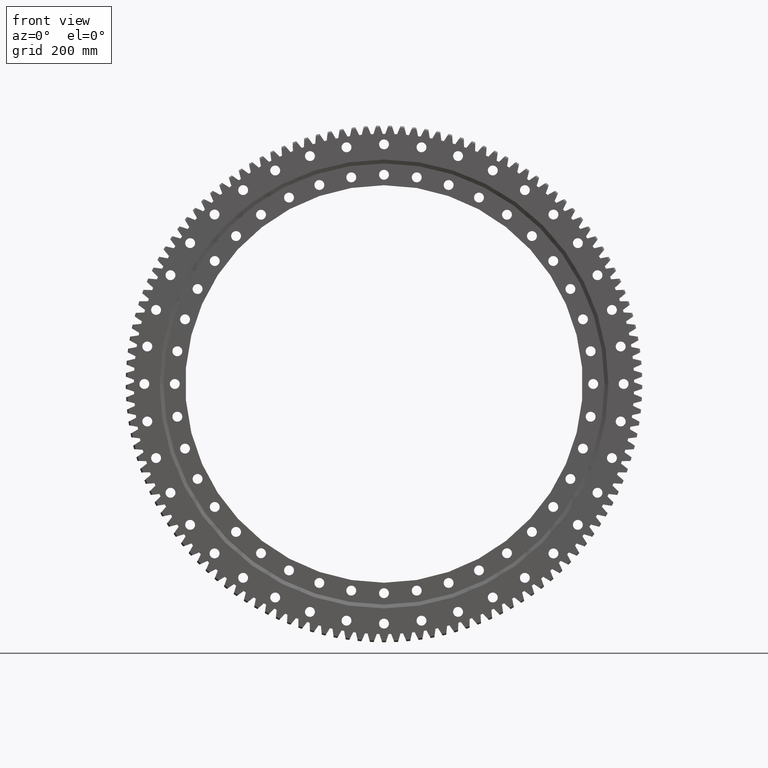
[diagram: clean part render]
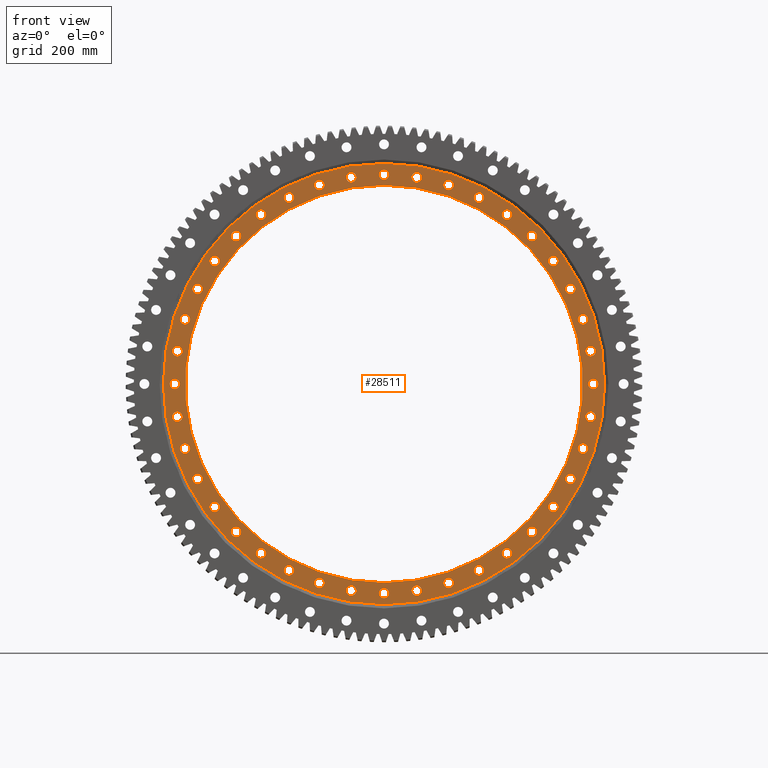
[diagram: same view with one face highlighted and labeled with its STEP entity id]
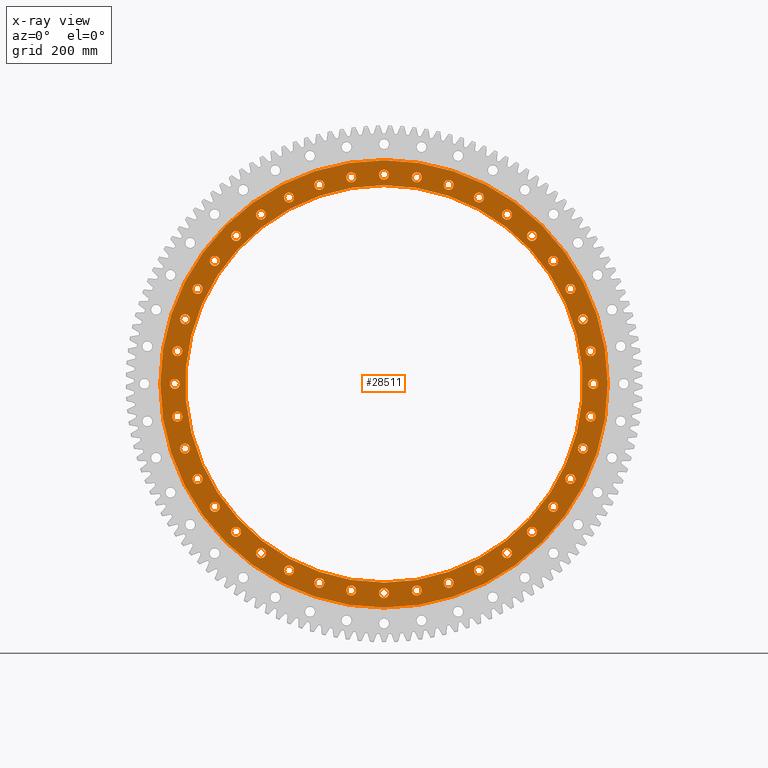
[diagram: x-ray of the same camera — body ghosted, the highlighted face saturated]
A machine part, front view. The second image highlights one B-rep face of the part: STEP entity #28511.
The next image is the same camera in x-ray: the body ghosted, the highlighted face saturated — about 0% of this face is hidden behind the body in this view.
In plain terms, the highlighted planar face has unit normal (-0, 1, -0).
Its self-contained STEP definition (entity closure, byte-faithful):
#2 = EDGE_LOOP ( 'NONE', ( #22681, #24210 ) ) ;
#46 = FACE_BOUND ( 'NONE', #8411, .T. ) ;
#116 = CARTESIAN_POINT ( 'NONE',  ( 490.0535883036012000, -35.00000000000007800, -249.6947748567531600 ) ) ;
#175 = CARTESIAN_POINT ( 'NONE',  ( -523.0810839623363800, -35.00000000000006400, -169.9593469062158700 ) ) ;
#296 = VERTEX_POINT ( 'NONE', #21896 ) ;
#397 = DIRECTION ( 'NONE',  ( 0.3090169943749544500, 0.0000000000000000000, -0.9510565162951512000 ) ) ;
#503 = AXIS2_PLACEMENT_3D ( 'NONE', #28906, #9432, #10714 ) ;
#553 = EDGE_CURVE ( 'NONE', #33398, #31529, #14959, .T. ) ;
#616 = CARTESIAN_POINT ( 'NONE',  ( -550.0000000000000000, -35.00000000000005700, 13.00000000000601300 ) ) ;
#636 = CIRCLE ( 'NONE', #33835, 13.00000000000001600 ) ;
#660 = VERTEX_POINT ( 'NONE', #25386 ) ;
#689 = VERTEX_POINT ( 'NONE', #16604 ) ;
#726 = ORIENTED_EDGE ( 'NONE', *, *, #16257, .T. ) ;
#828 = EDGE_CURVE ( 'NONE', #30111, #31584, #29296, .T. ) ;
#851 = DIRECTION ( 'NONE',  ( -0.1564344650402302900, 0.0000000000000000000, 0.9876883405951378800 ) ) ;
#856 = VERTEX_POINT ( 'NONE', #6034 ) ;
#916 = DIRECTION ( 'NONE',  ( 0.0000000000000000000, 1.000000000000000000, -2.727064569436390300E-017 ) ) ;
#938 = FACE_BOUND ( 'NONE', #20895, .T. ) ;
#1007 = ORIENTED_EDGE ( 'NONE', *, *, #35438, .T. ) ;
#1013 = AXIS2_PLACEMENT_3D ( 'NONE', #3148, #22633, #5931 ) ;
#1028 = DIRECTION ( 'NONE',  ( 0.0000000000000000000, 0.0000000000000000000, 1.000000000000000000 ) ) ;
#1237 = EDGE_CURVE ( 'NONE', #33409, #8491, #9678, .T. ) ;
#1258 = VERTEX_POINT ( 'NONE', #28976 ) ;
#1337 = DIRECTION ( 'NONE',  ( -0.8910065241883690100, 0.0000000000000000000, 0.4539904997395445300 ) ) ;
#1363 = ORIENTED_EDGE ( 'NONE', *, *, #1941, .T. ) ;
#1374 = AXIS2_PLACEMENT_3D ( 'NONE', #26689, #13929, #4905 ) ;
#1457 = EDGE_LOOP ( 'NONE', ( #726, #10316 ) ) ;
#1466 = EDGE_CURVE ( 'NONE', #26061, #26302, #32275, .T. ) ;
#1474 = DIRECTION ( 'NONE',  ( -1.540743955509788700E-033, 1.000000000000000000, -2.727064569436389400E-017 ) ) ;
#1581 = ORIENTED_EDGE ( 'NONE', *, *, #7650, .T. ) ;
#1583 = CIRCLE ( 'NONE', #8632, 13.00000000000002500 ) ;
#1675 = ORIENTED_EDGE ( 'NONE', *, *, #30729, .T. ) ;
#1784 = FACE_BOUND ( 'NONE', #20056, .T. ) ;
#1799 = EDGE_LOOP ( 'NONE', ( #21851, #22010 ) ) ;
#1802 = VERTEX_POINT ( 'NONE', #12382 ) ;
#1823 = EDGE_LOOP ( 'NONE', ( #31458, #12992 ) ) ;
#1878 = CARTESIAN_POINT ( 'NONE',  ( -323.2818887608544900, -35.00000000000004300, 457.9593469062253900 ) ) ;
#1941 = EDGE_CURVE ( 'NONE', #32969, #16763, #25362, .T. ) ;
#2142 = EDGE_CURVE ( 'NONE', #15536, #6484, #19240, .T. ) ;
#2272 = DIRECTION ( 'NONE',  ( 3.081487911019577400E-033, 1.000000000000000000, -2.727064569436390300E-017 ) ) ;
#2287 = CARTESIAN_POINT ( 'NONE',  ( 169.9593469062176300, -35.00000000000007100, -523.0810839623357000 ) ) ;
#2344 = ORIENTED_EDGE ( 'NONE', *, *, #32538, .T. ) ;
#2360 = CIRCLE ( 'NONE', #19656, 12.99999999999994300 ) ;
#2425 = CARTESIAN_POINT ( 'NONE',  ( -86.03895577211935100, -35.00000000000004300, 543.2285873273272000 ) ) ;
#2495 = DIRECTION ( 'NONE',  ( 0.1564344650402388900, 0.0000000000000000000, -0.9876883405951364400 ) ) ;
#2512 = AXIS2_PLACEMENT_3D ( 'NONE', #31195, #14539, #33994 ) ;
#2554 = CARTESIAN_POINT ( 'NONE',  ( -523.0810839623363800, -35.00000000000006400, -182.9593469062158400 ) ) ;
#2573 = EDGE_CURVE ( 'NONE', #33299, #32033, #23606, .T. ) ;
#2621 = EDGE_CURVE ( 'NONE', #660, #17774, #35756, .T. ) ;
#2637 = FACE_BOUND ( 'NONE', #21401, .T. ) ;
#2704 = DIRECTION ( 'NONE',  ( 0.8910065241883733400, 0.0000000000000000000, -0.4539904997395359800 ) ) ;
#2740 = CARTESIAN_POINT ( 'NONE',  ( 0.0000000000000000000, -35.00000000000004300, 522.5000000000000000 ) ) ;
#2750 = CARTESIAN_POINT ( 'NONE',  ( 7.202086593445627400E-014, -35.00000000000007100, -588.0950000000000300 ) ) ;
#2818 = DIRECTION ( 'NONE',  ( 1.540743955509788700E-033, 1.000000000000000000, -2.727064569436389700E-017 ) ) ;
#2831 = VERTEX_POINT ( 'NONE', #17134 ) ;
#2864 = ORIENTED_EDGE ( 'NONE', *, *, #35473, .T. ) ;
#2885 = DIRECTION ( 'NONE',  ( 0.8910065241883733400, 0.0000000000000000000, -0.4539904997395359800 ) ) ;
#2924 = DIRECTION ( 'NONE',  ( 3.081487911019577400E-033, 1.000000000000000000, -2.727064569436389700E-017 ) ) ;
#2960 = DIRECTION ( 'NONE',  ( -0.9510565162951518700, 0.0000000000000000000, -0.3090169943749525600 ) ) ;
#3042 = EDGE_CURVE ( 'NONE', #28476, #11312, #17034, .T. ) ;
#3118 = AXIS2_PLACEMENT_3D ( 'NONE', #4415, #12789, #32236 ) ;
#3134 = CARTESIAN_POINT ( 'NONE',  ( -543.2285873273267500, -35.00000000000005700, -86.03895577212128400 ) ) ;
#3148 = CARTESIAN_POINT ( 'NONE',  ( -249.6947748567548300, -35.00000000000007100, -490.0535883036002900 ) ) ;
#3219 = VERTEX_POINT ( 'NONE', #35810 ) ;
#3243 = EDGE_CURVE ( 'NONE', #12887, #4625, #11801, .T. ) ;
#3266 = CIRCLE ( 'NONE', #11001, 12.99999999999998800 ) ;
#3420 = DIRECTION ( 'NONE',  ( 1.540743955509788700E-033, 1.000000000000000000, -2.727064569436389400E-017 ) ) ;
#3489 = EDGE_LOOP ( 'NONE', ( #21086, #8113 ) ) ;
#3506 = DIRECTION ( 'NONE',  ( -0.7071067811865432400, 0.0000000000000000000, -0.7071067811865517900 ) ) ;
#3517 = FACE_BOUND ( 'NONE', #12529, .T. ) ;
#3616 = EDGE_LOOP ( 'NONE', ( #32998, #17420 ) ) ;
#3670 = CIRCLE ( 'NONE', #18006, 12.99999999999999800 ) ;
#3690 = AXIS2_PLACEMENT_3D ( 'NONE', #36049, #19372, #2704 ) ;
#3837 = CARTESIAN_POINT ( 'NONE',  ( 444.9593469062218700, -35.00000000000005000, 323.2818887608592000 ) ) ;
#3893 = CARTESIAN_POINT ( 'NONE',  ( -86.03895577213127400, -35.00000000000007100, -543.2285873273251600 ) ) ;
#3991 = CARTESIAN_POINT ( 'NONE',  ( 323.2818887608577300, -35.00000000000007100, -444.9593469062228900 ) ) ;
#4089 = EDGE_CURVE ( 'NONE', #12993, #18548, #20868, .T. ) ;
#4164 = CARTESIAN_POINT ( 'NONE',  ( -4.097465153342423900E-012, -35.00000000000007100, -537.0000000000000000 ) ) ;
#4192 = ORIENTED_EDGE ( 'NONE', *, *, #2621, .F. ) ;
#4304 = VERTEX_POINT ( 'NONE', #9323 ) ;
#4319 = VERTEX_POINT ( 'NONE', #27490 ) ;
#4401 = FACE_BOUND ( 'NONE', #15260, .T. ) ;
#4416 = CARTESIAN_POINT ( 'NONE',  ( 543.2285873273260700, -35.00000000000005700, 73.03895577212530600 ) ) ;
#4415 = CARTESIAN_POINT ( 'NONE',  ( 0.0000000000000000000, -35.00000000000004300, 522.5000000000000000 ) ) ;
#4442 = ORIENTED_EDGE ( 'NONE', *, *, #4089, .T. ) ;
#4463 = ORIENTED_EDGE ( 'NONE', *, *, #16428, .T. ) ;
#4508 = CIRCLE ( 'NONE', #29468, 13.00000000000001600 ) ;
#4530 = AXIS2_PLACEMENT_3D ( 'NONE', #34718, #11285, #13793 ) ;
#4625 = VERTEX_POINT ( 'NONE', #6551 ) ;
#4757 = CARTESIAN_POINT ( 'NONE',  ( -490.0535883036047800, -35.00000000000007800, -249.6947748567460500 ) ) ;
#4796 = EDGE_CURVE ( 'NONE', #16763, #32969, #15606, .T. ) ;
#4861 = DIRECTION ( 'NONE',  ( 0.0000000000000000000, 0.0000000000000000000, 1.000000000000000000 ) ) ;
#4882 = AXIS2_PLACEMENT_3D ( 'NONE', #30147, #10693, #22027 ) ;
#4905 = DIRECTION ( 'NONE',  ( 6.982962677686250900E-015, 0.0000000000000000000, -1.000000000000000000 ) ) ;
#4955 = CARTESIAN_POINT ( 'NONE',  ( 169.9593469062176300, -35.00000000000007100, -536.0810839623357000 ) ) ;
#5005 = AXIS2_PLACEMENT_3D ( 'NONE', #11966, #5719, #4861 ) ;
#5049 = ORIENTED_EDGE ( 'NONE', *, *, #27755, .T. ) ;
#5105 = VERTEX_POINT ( 'NONE', #23419 ) ;
#5126 = CIRCLE ( 'NONE', #30064, 13.00000000000001100 ) ;
#5217 = CIRCLE ( 'NONE', #27709, 13.00000000000001100 ) ;
#5250 = DIRECTION ( 'NONE',  ( -0.1564344650402302900, 0.0000000000000000000, 0.9876883405951378800 ) ) ;
#5261 = DIRECTION ( 'NONE',  ( -3.081487911019577400E-033, 1.000000000000000000, -2.727064569436390000E-017 ) ) ;
#5269 = FACE_BOUND ( 'NONE', #20915, .T. ) ;
#5275 = CARTESIAN_POINT ( 'NONE',  ( 388.9087296525989400, -35.00000000000007100, -375.9087296526033700 ) ) ;
#5381 = AXIS2_PLACEMENT_3D ( 'NONE', #3134, #22612, #8862 ) ;
#5430 = CARTESIAN_POINT ( 'NONE',  ( 444.9593469062218700, -35.00000000000005000, 336.2818887608592600 ) ) ;
#5443 = EDGE_CURVE ( 'NONE', #31564, #30318, #35131, .T. ) ;
#5474 = CIRCLE ( 'NONE', #15876, 12.99999999999997000 ) ;
#5541 = EDGE_LOOP ( 'NONE', ( #9003, #16368 ) ) ;
#5545 = CARTESIAN_POINT ( 'NONE',  ( -249.6947748567442000, -35.00000000000004300, 477.0535883036056900 ) ) ;
#5555 = CARTESIAN_POINT ( 'NONE',  ( -543.2285873273267500, -35.00000000000005700, -73.03895577212128400 ) ) ;
#5573 = EDGE_LOOP ( 'NONE', ( #13425, #26997 ) ) ;
#5575 = CARTESIAN_POINT ( 'NONE',  ( -323.2818887608641500, -35.00000000000007100, -444.9593469062182900 ) ) ;
#5593 = EDGE_CURVE ( 'NONE', #17767, #26936, #32485, .T. ) ;
#5650 = EDGE_LOOP ( 'NONE', ( #15470, #16458 ) ) ;
#5669 = CARTESIAN_POINT ( 'NONE',  ( -444.9593469062171500, -35.00000000000005000, 323.2818887608657400 ) ) ;
#5719 = DIRECTION ( 'NONE',  ( 0.0000000000000000000, 1.000000000000000000, -2.727064569436389700E-017 ) ) ;
#5860 = AXIS2_PLACEMENT_3D ( 'NONE', #32401, #15778, #35250 ) ;
#5917 = DIRECTION ( 'NONE',  ( -3.081487911019577400E-033, 1.000000000000000000, -2.727064569436389100E-017 ) ) ;
#5931 = DIRECTION ( 'NONE',  ( -0.4539904997395410900, 0.0000000000000000000, -0.8910065241883707900 ) ) ;
#5944 = ORIENTED_EDGE ( 'NONE', *, *, #34770, .T. ) ;
#6034 = CARTESIAN_POINT ( 'NONE',  ( 249.6947748567477300, -35.00000000000007100, -477.0535883036038700 ) ) ;
#6129 = FACE_BOUND ( 'NONE', #5541, .T. ) ;
#6165 = CARTESIAN_POINT ( 'NONE',  ( -86.03895577211935100, -35.00000000000004300, 556.2285873273272000 ) ) ;
#6241 = ORIENTED_EDGE ( 'NONE', *, *, #7167, .T. ) ;
#6266 = AXIS2_PLACEMENT_3D ( 'NONE', #35246, #28330, #2495 ) ;
#6282 = ORIENTED_EDGE ( 'NONE', *, *, #4796, .T. ) ;
#6425 = CARTESIAN_POINT ( 'NONE',  ( -4.097465153342423900E-012, -35.00000000000007100, -550.0000000000000000 ) ) ;
#6427 = EDGE_LOOP ( 'NONE', ( #9496, #21553 ) ) ;
#6484 = VERTEX_POINT ( 'NONE', #6774 ) ;
#6501 = AXIS2_PLACEMENT_3D ( 'NONE', #21381, #16019, #19522 ) ;
#6517 = AXIS2_PLACEMENT_3D ( 'NONE', #175, #19625, #2960 ) ;
#6551 = CARTESIAN_POINT ( 'NONE',  ( -86.03895577211935100, -35.00000000000004300, 530.2285873273270900 ) ) ;
#6596 = ORIENTED_EDGE ( 'NONE', *, *, #20607, .T. ) ;
#6666 = DIRECTION ( 'NONE',  ( -0.1564344650402240700, 0.0000000000000000000, -0.9876883405951387700 ) ) ;
#6699 = EDGE_CURVE ( 'NONE', #26936, #17767, #8440, .T. ) ;
#6748 = DIRECTION ( 'NONE',  ( 0.5877852522924809100, 0.0000000000000000000, -0.8090169943749417900 ) ) ;
#6774 = CARTESIAN_POINT ( 'NONE',  ( -323.2818887608641500, -35.00000000000007100, -431.9593469062182900 ) ) ;
#6798 = CIRCLE ( 'NONE', #5381, 12.99999999999994500 ) ;
#6811 = ORIENTED_EDGE ( 'NONE', *, *, #33135, .T. ) ;
#6912 = EDGE_CURVE ( 'NONE', #35715, #24868, #2360, .T. ) ;
#6928 = AXIS2_PLACEMENT_3D ( 'NONE', #29998, #13326, #32761 ) ;
#6949 = CARTESIAN_POINT ( 'NONE',  ( 444.9593469062195900, -35.00000000000007800, -310.2818887608623900 ) ) ;
#6975 = AXIS2_PLACEMENT_3D ( 'NONE', #19017, #25147, #30446 ) ;
#7018 = DIRECTION ( 'NONE',  ( -3.081487911019577400E-033, 1.000000000000000000, -2.727064569436389700E-017 ) ) ;
#7157 = CIRCLE ( 'NONE', #6928, 12.99999999999996100 ) ;
#7167 = EDGE_CURVE ( 'NONE', #15481, #35004, #16715, .T. ) ;
#7345 = ORIENTED_EDGE ( 'NONE', *, *, #25334, .T. ) ;
#7413 = FACE_BOUND ( 'NONE', #30209, .T. ) ;
#7508 = DIRECTION ( 'NONE',  ( -0.8910065241883655700, 0.0000000000000000000, -0.4539904997395513000 ) ) ;
#7575 = ORIENTED_EDGE ( 'NONE', *, *, #5443, .T. ) ;
#7592 = EDGE_CURVE ( 'NONE', #32206, #29600, #34955, .T. ) ;
#7599 = AXIS2_PLACEMENT_3D ( 'NONE', #11806, #31241, #14581 ) ;
#7608 = AXIS2_PLACEMENT_3D ( 'NONE', #15631, #35066, #18404 ) ;
#7619 = CIRCLE ( 'NONE', #25210, 13.00000000000003600 ) ;
#7638 = DIRECTION ( 'NONE',  ( 3.081487911019577400E-033, 1.000000000000000000, -2.727064569436389100E-017 ) ) ;
#7650 = EDGE_CURVE ( 'NONE', #689, #32589, #4508, .T. ) ;
#7859 = DIRECTION ( 'NONE',  ( 0.3090169943749544500, 0.0000000000000000000, -0.9510565162951512000 ) ) ;
#8100 = EDGE_LOOP ( 'NONE', ( #23653, #6241 ) ) ;
#8113 = ORIENTED_EDGE ( 'NONE', *, *, #34746, .T. ) ;
#8214 = CARTESIAN_POINT ( 'NONE',  ( -86.03895577213127400, -35.00000000000007100, -530.2285873273251600 ) ) ;
#8271 = FACE_BOUND ( 'NONE', #15211, .T. ) ;
#8275 = CARTESIAN_POINT ( 'NONE',  ( -543.2285873273249300, -35.00000000000005700, 86.03895577213305000 ) ) ;
#8411 = EDGE_LOOP ( 'NONE', ( #34862, #10697 ) ) ;
#8428 = DIRECTION ( 'NONE',  ( -0.8090169943749488900, 0.0000000000000000000, 0.5877852522924712500 ) ) ;
#8440 = CIRCLE ( 'NONE', #35286, 12.99999999999995200 ) ;
#8491 = VERTEX_POINT ( 'NONE', #8214 ) ;
#8492 = CARTESIAN_POINT ( 'NONE',  ( 490.0535883036031400, -35.00000000000005000, 249.6947748567492300 ) ) ;
#8509 = ORIENTED_EDGE ( 'NONE', *, *, #32747, .T. ) ;
#8556 = AXIS2_PLACEMENT_3D ( 'NONE', #30315, #26343, #29662 ) ;
#8593 = VERTEX_POINT ( 'NONE', #34313 ) ;
#8632 = AXIS2_PLACEMENT_3D ( 'NONE', #10249, #29719, #13082 ) ;
#8770 = VERTEX_POINT ( 'NONE', #5545 ) ;
#8786 = AXIS2_PLACEMENT_3D ( 'NONE', #27454, #10783, #30215 ) ;
#8862 = DIRECTION ( 'NONE',  ( -0.9876883405951368800, 0.0000000000000000000, -0.1564344650402358100 ) ) ;
#9003 = ORIENTED_EDGE ( 'NONE', *, *, #32543, .T. ) ;
#9105 = VERTEX_POINT ( 'NONE', #29560 ) ;
#9162 = FACE_BOUND ( 'NONE', #1823, .T. ) ;
#9214 = DIRECTION ( 'NONE',  ( 6.982962677686250900E-015, 0.0000000000000000000, -1.000000000000000000 ) ) ;
#9239 = AXIS2_PLACEMENT_3D ( 'NONE', #3893, #23347, #6666 ) ;
#9255 = CARTESIAN_POINT ( 'NONE',  ( 0.0000000000000000000, -35.00000000000005700, 1.082888357228264900E-016 ) ) ;
#9259 = AXIS2_PLACEMENT_3D ( 'NONE', #22965, #30454, #24029 ) ;
#9323 = CARTESIAN_POINT ( 'NONE',  ( 550.0000000000000000, -35.00000000000005700, 12.99999999999781900 ) ) ;
#9390 = EDGE_LOOP ( 'NONE', ( #18186, #24351 ) ) ;
#9432 = DIRECTION ( 'NONE',  ( 6.162975822039154700E-033, 1.000000000000000000, -2.727064569436390300E-017 ) ) ;
#9454 = DIRECTION ( 'NONE',  ( 3.081487911019577400E-033, 1.000000000000000000, -2.727064569436389100E-017 ) ) ;
#9488 = AXIS2_PLACEMENT_3D ( 'NONE', #26164, #9454, #28925 ) ;
#9496 = ORIENTED_EDGE ( 'NONE', *, *, #17359, .T. ) ;
#9566 = AXIS2_PLACEMENT_3D ( 'NONE', #4757, #24209, #7508 ) ;
#9567 = ORIENTED_EDGE ( 'NONE', *, *, #11329, .T. ) ;
#9601 = VERTEX_POINT ( 'NONE', #26018 ) ;
#9654 = AXIS2_PLACEMENT_3D ( 'NONE', #17840, #12087, #22313 ) ;
#9678 = CIRCLE ( 'NONE', #16894, 13.00000000000003200 ) ;
#9726 = DIRECTION ( 'NONE',  ( -7.703719777548943400E-034, 1.000000000000000000, -2.727064569436390300E-017 ) ) ;
#9728 = ORIENTED_EDGE ( 'NONE', *, *, #2573, .T. ) ;
#9755 = EDGE_CURVE ( 'NONE', #26169, #3219, #16626, .T. ) ;
#9758 = CIRCLE ( 'NONE', #17082, 13.00000000000004100 ) ;
#9805 = EDGE_CURVE ( 'NONE', #26069, #15021, #29670, .T. ) ;
#9930 = EDGE_LOOP ( 'NONE', ( #16811, #14780 ) ) ;
#9953 = ORIENTED_EDGE ( 'NONE', *, *, #5593, .T. ) ;
#10049 = FACE_BOUND ( 'NONE', #5650, .T. ) ;
#10167 = AXIS2_PLACEMENT_3D ( 'NONE', #33899, #19675, #19268 ) ;
#10249 = CARTESIAN_POINT ( 'NONE',  ( -169.9593469062252200, -35.00000000000007100, -523.0810839623332000 ) ) ;
#10286 = CARTESIAN_POINT ( 'NONE',  ( -323.2818887608544900, -35.00000000000004300, 431.9593469062253900 ) ) ;
#10316 = ORIENTED_EDGE ( 'NONE', *, *, #9805, .T. ) ;
#10449 = CARTESIAN_POINT ( 'NONE',  ( 169.9593469062218100, -35.00000000000004300, 523.0810839623343300 ) ) ;
#10550 = AXIS2_PLACEMENT_3D ( 'NONE', #24361, #7638, #27127 ) ;
#10563 = CARTESIAN_POINT ( 'NONE',  ( 523.0810839623350100, -35.00000000000005000, 169.9593469062194800 ) ) ;
#10581 = CARTESIAN_POINT ( 'NONE',  ( -388.9087296525962600, -35.00000000000003600, 401.9087296526061600 ) ) ;
#10629 = VERTEX_POINT ( 'NONE', #27027 ) ;
#10631 = CARTESIAN_POINT ( 'NONE',  ( 7.938094626069870900E-012, -35.00000000000004300, 563.0000000000000000 ) ) ;
#10639 = EDGE_CURVE ( 'NONE', #14582, #13203, #24420, .T. ) ;
#10642 = DIRECTION ( 'NONE',  ( 9.244463733058732100E-033, 1.000000000000000000, -2.727064569436389700E-017 ) ) ;
#10693 = DIRECTION ( 'NONE',  ( -3.081487911019577400E-033, 1.000000000000000000, -2.727064569436389400E-017 ) ) ;
#10697 = ORIENTED_EDGE ( 'NONE', *, *, #28373, .T. ) ;
#10714 = DIRECTION ( 'NONE',  ( -0.5877852522924732500, 0.0000000000000000000, 0.8090169943749472300 ) ) ;
#10715 = CIRCLE ( 'NONE', #27750, 12.99999999999997500 ) ;
#10765 = DIRECTION ( 'NONE',  ( 0.1564344650402167700, 0.0000000000000000000, 0.9876883405951399900 ) ) ;
#10783 = DIRECTION ( 'NONE',  ( -3.081487911019577400E-033, 1.000000000000000000, -2.727064569436389400E-017 ) ) ;
#10828 = DIRECTION ( 'NONE',  ( -3.081487911019577400E-033, 1.000000000000000000, -2.727064569436389700E-017 ) ) ;
#10919 = FACE_BOUND ( 'NONE', #34400, .T. ) ;
#10951 = CIRCLE ( 'NONE', #7608, 13.00000000000002300 ) ;
#10961 = EDGE_LOOP ( 'NONE', ( #29825, #20292 ) ) ;
#11001 = AXIS2_PLACEMENT_3D ( 'NONE', #10563, #30037, #13366 ) ;
#11087 = DIRECTION ( 'NONE',  ( -0.9510565162951518700, 0.0000000000000000000, -0.3090169943749525600 ) ) ;
#11199 = AXIS2_PLACEMENT_3D ( 'NONE', #25197, #17756, #11560 ) ;
#11211 = VERTEX_POINT ( 'NONE', #13959 ) ;
#11248 = VERTEX_POINT ( 'NONE', #34009 ) ;
#11257 = DIRECTION ( 'NONE',  ( 0.0000000000000000000, 1.000000000000000000, -2.727064569436389400E-017 ) ) ;
#11268 = EDGE_CURVE ( 'NONE', #13203, #14582, #28282, .T. ) ;
#11277 = AXIS2_PLACEMENT_3D ( 'NONE', #34324, #17656, #1028 ) ;
#11285 = DIRECTION ( 'NONE',  ( 3.081487911019577400E-033, 1.000000000000000000, -2.727064569436389700E-017 ) ) ;
#11312 = VERTEX_POINT ( 'NONE', #19662 ) ;
#11329 = EDGE_CURVE ( 'NONE', #4304, #1802, #5217, .T. ) ;
#11398 = ORIENTED_EDGE ( 'NONE', *, *, #11858, .T. ) ;
#11418 = DIRECTION ( 'NONE',  ( -0.7071067811865474600, 0.0000000000000000000, 0.7071067811865474600 ) ) ;
#11465 = CARTESIAN_POINT ( 'NONE',  ( -550.0000000000000000, -35.00000000000005700, 6.018734362305450800E-012 ) ) ;
#11540 = EDGE_CURVE ( 'NONE', #32033, #33299, #12172, .T. ) ;
#11560 = DIRECTION ( 'NONE',  ( 0.0000000000000000000, 2.656035944079321900E-017, 1.000000000000000000 ) ) ;
#11580 = EDGE_CURVE ( 'NONE', #30318, #31564, #26111, .T. ) ;
#11649 = DIRECTION ( 'NONE',  ( 0.9876883405951358800, 0.0000000000000000000, 0.1564344650402420300 ) ) ;
#11714 = CIRCLE ( 'NONE', #24485, 13.00000000000001600 ) ;
#11756 = ORIENTED_EDGE ( 'NONE', *, *, #11580, .T. ) ;
#11801 = CIRCLE ( 'NONE', #33011, 13.00000000000004400 ) ;
#11802 = FACE_BOUND ( 'NONE', #8100, .T. ) ;
#11806 = CARTESIAN_POINT ( 'NONE',  ( 388.9087296526020600, -35.00000000000003600, 388.9087296526003000 ) ) ;
#11858 = EDGE_CURVE ( 'NONE', #32589, #689, #11714, .T. ) ;
#11867 = CIRCLE ( 'NONE', #18361, 12.99999999999994300 ) ;
#11931 = DIRECTION ( 'NONE',  ( 0.4539904997395564100, 0.0000000000000000000, -0.8910065241883630100 ) ) ;
#11935 = CIRCLE ( 'NONE', #9488, 12.99999999999998400 ) ;
#11950 = DIRECTION ( 'NONE',  ( 0.0000000000000000000, 1.000000000000000000, -2.727064569436390300E-017 ) ) ;
#11966 = CARTESIAN_POINT ( 'NONE',  ( 7.938094626069870900E-012, -35.00000000000004300, 550.0000000000000000 ) ) ;
#12060 = CIRCLE ( 'NONE', #28453, 12.99999999999999500 ) ;
#12087 = DIRECTION ( 'NONE',  ( -3.081487911019577400E-033, 1.000000000000000000, -2.727064569436389100E-017 ) ) ;
#12088 = DIRECTION ( 'NONE',  ( 0.0000000000000000000, 2.359786736465104500E-017, 1.000000000000000000 ) ) ;
#12172 = CIRCLE ( 'NONE', #19572, 13.00000000000001600 ) ;
#12233 = ORIENTED_EDGE ( 'NONE', *, *, #18770, .T. ) ;
#12313 = DIRECTION ( 'NONE',  ( -3.081487911019577400E-033, 1.000000000000000000, -2.727064569436389700E-017 ) ) ;
#12382 = CARTESIAN_POINT ( 'NONE',  ( 550.0000000000000000, -35.00000000000005700, -13.00000000000216700 ) ) ;
#12403 = CIRCLE ( 'NONE', #11277, 13.00000000000001100 ) ;
#12455 = EDGE_CURVE ( 'NONE', #9601, #15962, #17329, .T. ) ;
#12529 = EDGE_LOOP ( 'NONE', ( #34166, #1007 ) ) ;
#12669 = CARTESIAN_POINT ( 'NONE',  ( 169.9593469062218100, -35.00000000000004300, 510.0810839623343300 ) ) ;
#12685 = FACE_BOUND ( 'NONE', #14770, .T. ) ;
#12743 = DIRECTION ( 'NONE',  ( -3.081487911019577400E-033, 1.000000000000000000, -2.727064569436389700E-017 ) ) ;
#12753 = CARTESIAN_POINT ( 'NONE',  ( -388.9087296526046800, -35.00000000000007100, -401.9087296525976300 ) ) ;
#12789 = DIRECTION ( 'NONE',  ( -0.0000000000000000000, 1.000000000000000000, -2.727064569436389700E-017 ) ) ;
#12887 = VERTEX_POINT ( 'NONE', #6165 ) ;
#12899 = VERTEX_POINT ( 'NONE', #30021 ) ;
#12916 = CARTESIAN_POINT ( 'NONE',  ( -490.0535883035993300, -35.00000000000005000, 236.6947748567566500 ) ) ;
#12992 = ORIENTED_EDGE ( 'NONE', *, *, #553, .T. ) ;
#12993 = VERTEX_POINT ( 'NONE', #5430 ) ;
#13082 = DIRECTION ( 'NONE',  ( -0.3090169943749403500, 0.0000000000000000000, -0.9510565162951557500 ) ) ;
#13203 = VERTEX_POINT ( 'NONE', #13395 ) ;
#13245 = CIRCLE ( 'NONE', #2512, 12.99999999999998800 ) ;
#13326 = DIRECTION ( 'NONE',  ( -1.540743955509788700E-033, 1.000000000000000000, -2.727064569436389700E-017 ) ) ;
#13366 = DIRECTION ( 'NONE',  ( 0.9510565162951498700, 0.0000000000000000000, 0.3090169943749583300 ) ) ;
#13378 = EDGE_CURVE ( 'NONE', #31529, #33398, #6798, .T. ) ;
#13395 = CARTESIAN_POINT ( 'NONE',  ( 543.2285873273260700, -35.00000000000005700, 99.03895577212530600 ) ) ;
#13423 = AXIS2_PLACEMENT_3D ( 'NONE', #5575, #18329, #16851 ) ;
#13425 = ORIENTED_EDGE ( 'NONE', *, *, #27232, .T. ) ;
#13440 = DIRECTION ( 'NONE',  ( 7.703719777548943400E-034, 1.000000000000000000, -2.727064569436390300E-017 ) ) ;
#13530 = FACE_BOUND ( 'NONE', #3616, .T. ) ;
#13567 = EDGE_CURVE ( 'NONE', #856, #5105, #23792, .T. ) ;
#13588 = EDGE_LOOP ( 'NONE', ( #35951, #31469 ) ) ;
#13606 = CIRCLE ( 'NONE', #29592, 13.00000000000003600 ) ;
#13656 = VERTEX_POINT ( 'NONE', #25562 ) ;
#13681 = CIRCLE ( 'NONE', #18713, 12.99999999999996100 ) ;
#13793 = DIRECTION ( 'NONE',  ( -0.8090169943749488900, 0.0000000000000000000, 0.5877852522924712500 ) ) ;
#13819 = CARTESIAN_POINT ( 'NONE',  ( -523.0810839623326300, -35.00000000000005000, 169.9593469062271800 ) ) ;
#13847 = EDGE_LOOP ( 'NONE', ( #32364, #6596 ) ) ;
#13885 = CARTESIAN_POINT ( 'NONE',  ( -523.0810839623363800, -35.00000000000006400, -169.9593469062158700 ) ) ;
#13929 = DIRECTION ( 'NONE',  ( -2.189528850507526700E-047, 1.000000000000000000, -2.727064569436389100E-017 ) ) ;
#13932 = EDGE_LOOP ( 'NONE', ( #1581, #11398 ) ) ;
#13959 = CARTESIAN_POINT ( 'NONE',  ( -444.9593469062242000, -35.00000000000007800, -310.2818887608559600 ) ) ;
#13969 = ORIENTED_EDGE ( 'NONE', *, *, #22749, .T. ) ;
#13977 = EDGE_CURVE ( 'NONE', #5105, #856, #19206, .T. ) ;
#14055 = AXIS2_PLACEMENT_3D ( 'NONE', #32697, #16083, #35518 ) ;
#14274 = EDGE_CURVE ( 'NONE', #21282, #9105, #34427, .T. ) ;
#14296 = EDGE_CURVE ( 'NONE', #18853, #11211, #17024, .T. ) ;
#14305 = ORIENTED_EDGE ( 'NONE', *, *, #18460, .T. ) ;
#14410 = FACE_BOUND ( 'NONE', #15056, .T. ) ;
#14445 = AXIS2_PLACEMENT_3D ( 'NONE', #16900, #35503, #26971 ) ;
#14528 = DIRECTION ( 'NONE',  ( -1.540743955509788700E-033, 1.000000000000000000, -2.727064569436389700E-017 ) ) ;
#14533 = DIRECTION ( 'NONE',  ( -3.081487911019577400E-033, 1.000000000000000000, -2.727064569436389700E-017 ) ) ;
#14538 = AXIS2_PLACEMENT_3D ( 'NONE', #26130, #17272, #33689 ) ;
#14539 = DIRECTION ( 'NONE',  ( -3.081487911019577400E-033, 1.000000000000000000, -2.727064569436389700E-017 ) ) ;
#14581 = DIRECTION ( 'NONE',  ( 0.7071067811865390200, 0.0000000000000000000, 0.7071067811865561200 ) ) ;
#14582 = VERTEX_POINT ( 'NONE', #4416 ) ;
#14602 = CARTESIAN_POINT ( 'NONE',  ( 444.9593469062218700, -35.00000000000005000, 310.2818887608592000 ) ) ;
#14701 = VERTEX_POINT ( 'NONE', #22911 ) ;
#14734 = CARTESIAN_POINT ( 'NONE',  ( 490.0535883036031400, -35.00000000000005000, 249.6947748567492300 ) ) ;
#14770 = EDGE_LOOP ( 'NONE', ( #16552, #33270 ) ) ;
#14778 = CARTESIAN_POINT ( 'NONE',  ( -86.03895577211935100, -35.00000000000004300, 543.2285873273272000 ) ) ;
#14780 = ORIENTED_EDGE ( 'NONE', *, *, #31463, .T. ) ;
#14837 = FACE_BOUND ( 'NONE', #31959, .T. ) ;
#14959 = CIRCLE ( 'NONE', #14538, 12.99999999999994500 ) ;
#14998 = DIRECTION ( 'NONE',  ( -3.081487911019577400E-033, 1.000000000000000000, -2.727064569436389700E-017 ) ) ;
#15021 = VERTEX_POINT ( 'NONE', #2740 ) ;
#15056 = EDGE_LOOP ( 'NONE', ( #15188, #12233 ) ) ;
#15144 = ORIENTED_EDGE ( 'NONE', *, *, #27551, .T. ) ;
#15188 = ORIENTED_EDGE ( 'NONE', *, *, #12455, .T. ) ;
#15211 = EDGE_LOOP ( 'NONE', ( #5049, #19418 ) ) ;
#15238 = VERTEX_POINT ( 'NONE', #28383 ) ;
#15260 = EDGE_LOOP ( 'NONE', ( #15144, #22631 ) ) ;
#15317 = CARTESIAN_POINT ( 'NONE',  ( -490.0535883035993300, -35.00000000000005000, 262.6947748567566200 ) ) ;
#15418 = CIRCLE ( 'NONE', #7599, 12.99999999999999300 ) ;
#15441 = CARTESIAN_POINT ( 'NONE',  ( -169.9593469062252200, -35.00000000000007100, -523.0810839623332000 ) ) ;
#15470 = ORIENTED_EDGE ( 'NONE', *, *, #32842, .T. ) ;
#15481 = VERTEX_POINT ( 'NONE', #18379 ) ;
#15535 = EDGE_CURVE ( 'NONE', #11211, #18853, #27380, .T. ) ;
#15536 = VERTEX_POINT ( 'NONE', #30079 ) ;
#15542 = DIRECTION ( 'NONE',  ( 3.081487911019577400E-033, 1.000000000000000000, -2.727064569436390300E-017 ) ) ;
#15606 = CIRCLE ( 'NONE', #6501, 12.99999999999999300 ) ;
#15631 = CARTESIAN_POINT ( 'NONE',  ( 543.2285873273256100, -35.00000000000005700, -86.03895577212915700 ) ) ;
#15651 = CARTESIAN_POINT ( 'NONE',  ( 490.0535883036031400, -35.00000000000005000, 262.6947748567492300 ) ) ;
#15706 = FACE_BOUND ( 'NONE', #13847, .T. ) ;
#15778 = DIRECTION ( 'NONE',  ( 0.0000000000000000000, 1.000000000000000000, -2.727064569436390300E-017 ) ) ;
#15875 = CARTESIAN_POINT ( 'NONE',  ( -490.0535883035993300, -35.00000000000005000, 249.6947748567566500 ) ) ;
#15876 = AXIS2_PLACEMENT_3D ( 'NONE', #2287, #18937, #7859 ) ;
#15962 = VERTEX_POINT ( 'NONE', #12669 ) ;
#16019 = DIRECTION ( 'NONE',  ( 0.0000000000000000000, 1.000000000000000000, -2.727064569436389400E-017 ) ) ;
#16065 = DIRECTION ( 'NONE',  ( -9.244463733058732100E-033, 1.000000000000000000, -2.727064569436389100E-017 ) ) ;
#16083 = DIRECTION ( 'NONE',  ( 6.162975822039154700E-033, 1.000000000000000000, -2.727064569436390300E-017 ) ) ;
#16257 = EDGE_CURVE ( 'NONE', #15021, #26069, #23874, .T. ) ;
#16368 = ORIENTED_EDGE ( 'NONE', *, *, #24824, .T. ) ;
#16428 = EDGE_CURVE ( 'NONE', #3219, #26169, #18613, .T. ) ;
#16458 = ORIENTED_EDGE ( 'NONE', *, *, #2142, .T. ) ;
#16479 = CARTESIAN_POINT ( 'NONE',  ( 543.2285873273256100, -35.00000000000005700, -99.03895577212915700 ) ) ;
#16529 = DIRECTION ( 'NONE',  ( -3.081487911019577400E-033, 1.000000000000000000, -2.727064569436389700E-017 ) ) ;
#16552 = ORIENTED_EDGE ( 'NONE', *, *, #11268, .T. ) ;
#16574 = FACE_BOUND ( 'NONE', #19544, .T. ) ;
#16589 = ORIENTED_EDGE ( 'NONE', *, *, #27466, .T. ) ;
#16604 = CARTESIAN_POINT ( 'NONE',  ( 523.0810839623336500, -35.00000000000006400, -156.9593469062236600 ) ) ;
#16620 = CIRCLE ( 'NONE', #9239, 13.00000000000003200 ) ;
#16626 = CIRCLE ( 'NONE', #22572, 13.00000000000003900 ) ;
#16631 = DIRECTION ( 'NONE',  ( -0.9510565162951546400, 0.0000000000000000000, 0.3090169943749442300 ) ) ;
#16644 = CARTESIAN_POINT ( 'NONE',  ( 523.0810839623336500, -35.00000000000006400, -169.9593469062236300 ) ) ;
#16689 = EDGE_CURVE ( 'NONE', #22709, #26526, #18162, .T. ) ;
#16715 = CIRCLE ( 'NONE', #9654, 12.99999999999999800 ) ;
#16753 = DIRECTION ( 'NONE',  ( 1.000000000000000000, 0.0000000000000000000, 1.047444401652937600E-014 ) ) ;
#16763 = VERTEX_POINT ( 'NONE', #32422 ) ;
#16811 = ORIENTED_EDGE ( 'NONE', *, *, #18895, .T. ) ;
#16851 = DIRECTION ( 'NONE',  ( -0.5877852522924684700, 0.0000000000000000000, -0.8090169943749507800 ) ) ;
#16894 = AXIS2_PLACEMENT_3D ( 'NONE', #34004, #31773, #17619 ) ;
#16900 = CARTESIAN_POINT ( 'NONE',  ( -550.0000000000000000, -35.00000000000005700, 6.018734362305450800E-012 ) ) ;
#16925 = EDGE_CURVE ( 'NONE', #9105, #21282, #12060, .T. ) ;
#16936 = CARTESIAN_POINT ( 'NONE',  ( 388.9087296525989400, -35.00000000000007100, -401.9087296526033700 ) ) ;
#16957 = DIRECTION ( 'NONE',  ( 0.0000000000000000000, 1.000000000000000000, -2.727064569436389700E-017 ) ) ;
#17024 = CIRCLE ( 'NONE', #17915, 13.00000000000000500 ) ;
#17034 = CIRCLE ( 'NONE', #1374, 13.00000000000001100 ) ;
#17056 = DIRECTION ( 'NONE',  ( -1.540743955509788700E-033, 1.000000000000000000, -2.727064569436389100E-017 ) ) ;
#17060 = CARTESIAN_POINT ( 'NONE',  ( 86.03895577212725200, -35.00000000000004300, 543.2285873273259500 ) ) ;
#17082 = AXIS2_PLACEMENT_3D ( 'NONE', #27324, #10642, #30101 ) ;
#17134 = CARTESIAN_POINT ( 'NONE',  ( -523.0810839623363800, -35.00000000000006400, -156.9593469062158700 ) ) ;
#17157 = DIRECTION ( 'NONE',  ( 1.540743955509788700E-033, 1.000000000000000000, -2.727064569436389700E-017 ) ) ;
#17171 = EDGE_CURVE ( 'NONE', #28656, #27972, #25536, .T. ) ;
#17180 = EDGE_CURVE ( 'NONE', #27972, #28656, #10715, .T. ) ;
#17251 = VERTEX_POINT ( 'NONE', #23138 ) ;
#17256 = DIRECTION ( 'NONE',  ( 0.1564344650402388900, 0.0000000000000000000, -0.9876883405951364400 ) ) ;
#17272 = DIRECTION ( 'NONE',  ( 3.081487911019577400E-033, 1.000000000000000000, -2.727064569436389100E-017 ) ) ;
#17329 = CIRCLE ( 'NONE', #24949, 12.99999999999999800 ) ;
#17359 = EDGE_CURVE ( 'NONE', #23676, #29020, #5474, .T. ) ;
#17420 = ORIENTED_EDGE ( 'NONE', *, *, #33071, .T. ) ;
#17447 = FACE_BOUND ( 'NONE', #5573, .T. ) ;
#17515 = DIRECTION ( 'NONE',  ( 0.8910065241883630100, 0.0000000000000000000, 0.4539904997395564100 ) ) ;
#17531 = CARTESIAN_POINT ( 'NONE',  ( 323.2818887608577300, -35.00000000000007100, -444.9593469062228900 ) ) ;
#17560 = EDGE_CURVE ( 'NONE', #14701, #8770, #7619, .T. ) ;
#17588 = AXIS2_PLACEMENT_3D ( 'NONE', #31187, #14528, #33983 ) ;
#17606 = CARTESIAN_POINT ( 'NONE',  ( -490.0535883036047800, -35.00000000000007800, -236.6947748567460500 ) ) ;
#17619 = DIRECTION ( 'NONE',  ( -0.1564344650402240700, 0.0000000000000000000, -0.9876883405951387700 ) ) ;
#17644 = AXIS2_PLACEMENT_3D ( 'NONE', #2425, #21897, #5250 ) ;
#17653 = AXIS2_PLACEMENT_3D ( 'NONE', #31191, #14533, #33988 ) ;
#17656 = DIRECTION ( 'NONE',  ( 0.0000000000000000000, 1.000000000000000000, -2.727064569436389700E-017 ) ) ;
#17756 = DIRECTION ( 'NONE',  ( -0.0000000000000000000, 1.000000000000000000, -2.727064569436389700E-017 ) ) ;
#17767 = VERTEX_POINT ( 'NONE', #27698 ) ;
#17774 = VERTEX_POINT ( 'NONE', #2750 ) ;
#17809 = DIRECTION ( 'NONE',  ( 0.3090169943749345700, 0.0000000000000000000, 0.9510565162951577500 ) ) ;
#17840 = CARTESIAN_POINT ( 'NONE',  ( 444.9593469062195900, -35.00000000000007800, -323.2818887608623900 ) ) ;
#17915 = AXIS2_PLACEMENT_3D ( 'NONE', #23614, #5261, #34958 ) ;
#17931 = ORIENTED_EDGE ( 'NONE', *, *, #6912, .T. ) ;
#17964 = DIRECTION ( 'NONE',  ( 0.0000000000000000000, 1.000000000000000000, -2.727064569436389700E-017 ) ) ;
#18006 = AXIS2_PLACEMENT_3D ( 'NONE', #19061, #35726, #30218 ) ;
#18025 = EDGE_LOOP ( 'NONE', ( #4192, #35581 ) ) ;
#18064 = EDGE_LOOP ( 'NONE', ( #22576, #18918 ) ) ;
#18162 = CIRCLE ( 'NONE', #503, 12.99999999999997300 ) ;
#18186 = ORIENTED_EDGE ( 'NONE', *, *, #19660, .T. ) ;
#18257 = DIRECTION ( 'NONE',  ( -0.3090169943749403500, 0.0000000000000000000, -0.9510565162951557500 ) ) ;
#18324 = FACE_BOUND ( 'NONE', #6427, .T. ) ;
#18329 = DIRECTION ( 'NONE',  ( 3.081487911019577400E-033, 1.000000000000000000, -2.727064569436389100E-017 ) ) ;
#18361 = AXIS2_PLACEMENT_3D ( 'NONE', #18915, #2272, #21738 ) ;
#18379 = CARTESIAN_POINT ( 'NONE',  ( 444.9593469062195900, -35.00000000000007800, -336.2818887608623900 ) ) ;
#18404 = DIRECTION ( 'NONE',  ( 0.9876883405951394400, 0.0000000000000000000, -0.1564344650402199100 ) ) ;
#18460 = EDGE_CURVE ( 'NONE', #30127, #2831, #13681, .T. ) ;
#18472 = EDGE_CURVE ( 'NONE', #29020, #23676, #28489, .T. ) ;
#18548 = VERTEX_POINT ( 'NONE', #14602 ) ;
#18557 = AXIS2_PLACEMENT_3D ( 'NONE', #28609, #11950, #31397 ) ;
#18613 = CIRCLE ( 'NONE', #27976, 13.00000000000003900 ) ;
#18684 = DIRECTION ( 'NONE',  ( -0.8910065241883690100, 0.0000000000000000000, 0.4539904997395445300 ) ) ;
#18713 = AXIS2_PLACEMENT_3D ( 'NONE', #13885, #30540, #11087 ) ;
#18770 = EDGE_CURVE ( 'NONE', #15962, #9601, #3670, .T. ) ;
#18795 = CIRCLE ( 'NONE', #17653, 12.99999999999999300 ) ;
#18849 = CARTESIAN_POINT ( 'NONE',  ( 490.0535883036031400, -35.00000000000005000, 236.6947748567492600 ) ) ;
#18853 = VERTEX_POINT ( 'NONE', #34245 ) ;
#18895 = EDGE_CURVE ( 'NONE', #8593, #13656, #32775, .T. ) ;
#18915 = CARTESIAN_POINT ( 'NONE',  ( -169.9593469062139400, -35.00000000000004300, 523.0810839623368300 ) ) ;
#18918 = ORIENTED_EDGE ( 'NONE', *, *, #14296, .T. ) ;
#18937 = DIRECTION ( 'NONE',  ( -1.540743955509788700E-033, 1.000000000000000000, -2.727064569436389100E-017 ) ) ;
#19007 = CIRCLE ( 'NONE', #25678, 13.00000000000001100 ) ;
#19017 = CARTESIAN_POINT ( 'NONE',  ( -444.9593469062242000, -35.00000000000007800, -323.2818887608559600 ) ) ;
#19061 = CARTESIAN_POINT ( 'NONE',  ( 169.9593469062218100, -35.00000000000004300, 523.0810839623343300 ) ) ;
#19185 = FACE_BOUND ( 'NONE', #35262, .T. ) ;
#19194 = CARTESIAN_POINT ( 'NONE',  ( -169.9593469062139400, -35.00000000000004300, 536.0810839623368300 ) ) ;
#19206 = CIRCLE ( 'NONE', #9259, 12.99999999999997500 ) ;
#19240 = CIRCLE ( 'NONE', #13423, 12.99999999999998400 ) ;
#19252 = CARTESIAN_POINT ( 'NONE',  ( 86.03895577212725200, -35.00000000000004300, 530.2285873273259500 ) ) ;
#19268 = DIRECTION ( 'NONE',  ( 0.0000000000000000000, 2.359786736465104500E-017, 1.000000000000000000 ) ) ;
#19298 = DIRECTION ( 'NONE',  ( 0.9510565162951564200, 0.0000000000000000000, -0.3090169943749384000 ) ) ;
#19351 = CIRCLE ( 'NONE', #8786, 12.99999999999999300 ) ;
#19372 = DIRECTION ( 'NONE',  ( -3.081487911019577400E-033, 1.000000000000000000, -2.727064569436389100E-017 ) ) ;
#19418 = ORIENTED_EDGE ( 'NONE', *, *, #828, .T. ) ;
#19492 = CARTESIAN_POINT ( 'NONE',  ( -249.6947748567442000, -35.00000000000004300, 490.0535883036056900 ) ) ;
#19506 = AXIS2_PLACEMENT_3D ( 'NONE', #27494, #10828, #30267 ) ;
#19522 = DIRECTION ( 'NONE',  ( -0.7071067811865432400, 0.0000000000000000000, -0.7071067811865517900 ) ) ;
#19543 = DIRECTION ( 'NONE',  ( -3.081487911019577400E-033, 1.000000000000000000, -2.727064569436389400E-017 ) ) ;
#19544 = EDGE_LOOP ( 'NONE', ( #5944, #14305 ) ) ;
#19558 = DIRECTION ( 'NONE',  ( -3.081487911019577400E-033, 1.000000000000000000, -2.727064569436389100E-017 ) ) ;
#19569 = AXIS2_PLACEMENT_3D ( 'NONE', #9255, #28757, #12088 ) ;
#19572 = AXIS2_PLACEMENT_3D ( 'NONE', #17060, #9726, #32959 ) ;
#19625 = DIRECTION ( 'NONE',  ( 3.081487911019577400E-033, 1.000000000000000000, -2.727064569436389700E-017 ) ) ;
#19655 = CARTESIAN_POINT ( 'NONE',  ( -550.0000000000000000, -35.00000000000005700, -12.99999999999397300 ) ) ;
#19656 = AXIS2_PLACEMENT_3D ( 'NONE', #20590, #15542, #32189 ) ;
#19660 = EDGE_CURVE ( 'NONE', #26526, #22709, #34058, .T. ) ;
#19662 = CARTESIAN_POINT ( 'NONE',  ( -4.095873112503532700E-012, -35.00000000000007100, -563.0000000000000000 ) ) ;
#19670 = CARTESIAN_POINT ( 'NONE',  ( 323.2818887608608500, -35.00000000000004300, 431.9593469062206700 ) ) ;
#19675 = DIRECTION ( 'NONE',  ( -0.0000000000000000000, 1.000000000000000000, -2.727064569436389700E-017 ) ) ;
#19840 = CIRCLE ( 'NONE', #18557, 12.99999999999999300 ) ;
#19966 = CARTESIAN_POINT ( 'NONE',  ( -249.6947748567442000, -35.00000000000004300, 490.0535883036056900 ) ) ;
#19975 = VERTEX_POINT ( 'NONE', #20306 ) ;
#20056 = EDGE_LOOP ( 'NONE', ( #11756, #7575 ) ) ;
#20066 = FACE_BOUND ( 'NONE', #23908, .T. ) ;
#20095 = CARTESIAN_POINT ( 'NONE',  ( -249.6947748567548300, -35.00000000000007100, -490.0535883036002900 ) ) ;
#20145 = AXIS2_PLACEMENT_3D ( 'NONE', #20462, #16065, #21054 ) ;
#20260 = AXIS2_PLACEMENT_3D ( 'NONE', #23578, #19543, #11649 ) ;
#20269 = VERTEX_POINT ( 'NONE', #19670 ) ;
#20292 = ORIENTED_EDGE ( 'NONE', *, *, #23257, .T. ) ;
#20306 = CARTESIAN_POINT ( 'NONE',  ( 388.9087296526020600, -35.00000000000003600, 401.9087296526003000 ) ) ;
#20335 = DIRECTION ( 'NONE',  ( 0.5877852522924809100, 0.0000000000000000000, -0.8090169943749417900 ) ) ;
#20339 = ORIENTED_EDGE ( 'NONE', *, *, #1237, .T. ) ;
#20393 = CARTESIAN_POINT ( 'NONE',  ( 550.0000000000000000, -35.00000000000005700, -2.176195944379397400E-012 ) ) ;
#20462 = CARTESIAN_POINT ( 'NONE',  ( 543.2285873273256100, -35.00000000000005700, -86.03895577212915700 ) ) ;
#20523 = ORIENTED_EDGE ( 'NONE', *, *, #26509, .T. ) ;
#20557 = CIRCLE ( 'NONE', #17588, 12.99999999999996100 ) ;
#20575 = AXIS2_PLACEMENT_3D ( 'NONE', #33670, #17056, #397 ) ;
#20590 = CARTESIAN_POINT ( 'NONE',  ( -169.9593469062139400, -35.00000000000004300, 523.0810839623368300 ) ) ;
#20607 = EDGE_CURVE ( 'NONE', #28534, #35551, #25836, .T. ) ;
#20645 = ORIENTED_EDGE ( 'NONE', *, *, #16925, .T. ) ;
#20704 = EDGE_LOOP ( 'NONE', ( #2864, #20339 ) ) ;
#20711 = ORIENTED_EDGE ( 'NONE', *, *, #33604, .T. ) ;
#20868 = CIRCLE ( 'NONE', #25369, 12.99999999999999300 ) ;
#20895 = EDGE_LOOP ( 'NONE', ( #36043, #20645 ) ) ;
#20915 = EDGE_LOOP ( 'NONE', ( #9567, #16589 ) ) ;
#21054 = DIRECTION ( 'NONE',  ( 0.9876883405951394400, 0.0000000000000000000, -0.1564344650402199100 ) ) ;
#21086 = ORIENTED_EDGE ( 'NONE', *, *, #17560, .T. ) ;
#21157 = DIRECTION ( 'NONE',  ( -0.9876883405951382100, 0.0000000000000000000, 0.1564344650402271800 ) ) ;
#21282 = VERTEX_POINT ( 'NONE', #10581 ) ;
#21348 = EDGE_CURVE ( 'NONE', #17251, #12899, #20557, .T. ) ;
#21358 = FACE_BOUND ( 'NONE', #1457, .T. ) ;
#21381 = CARTESIAN_POINT ( 'NONE',  ( -388.9087296526046800, -35.00000000000007100, -388.9087296525975700 ) ) ;
#21401 = EDGE_LOOP ( 'NONE', ( #6282, #1363 ) ) ;
#21443 = DIRECTION ( 'NONE',  ( 0.8910065241883630100, 0.0000000000000000000, 0.4539904997395564100 ) ) ;
#21553 = ORIENTED_EDGE ( 'NONE', *, *, #18472, .T. ) ;
#21738 = DIRECTION ( 'NONE',  ( -0.3090169943749486700, 0.0000000000000000000, 0.9510565162951532000 ) ) ;
#21851 = ORIENTED_EDGE ( 'NONE', *, *, #25407, .T. ) ;
#21885 = CIRCLE ( 'NONE', #6517, 12.99999999999996100 ) ;
#21896 = CARTESIAN_POINT ( 'NONE',  ( 523.0810839623350100, -35.00000000000005000, 182.9593469062194500 ) ) ;
#21897 = DIRECTION ( 'NONE',  ( 7.703719777548943400E-034, 1.000000000000000000, -2.727064569436390300E-017 ) ) ;
#21899 = VERTEX_POINT ( 'NONE', #16936 ) ;
#21927 = DIRECTION ( 'NONE',  ( -0.9876883405951382100, 0.0000000000000000000, 0.1564344650402271800 ) ) ;
#22010 = ORIENTED_EDGE ( 'NONE', *, *, #28628, .T. ) ;
#22027 = DIRECTION ( 'NONE',  ( 0.9876883405951358800, 0.0000000000000000000, 0.1564344650402420300 ) ) ;
#22239 = FACE_BOUND ( 'NONE', #3489, .T. ) ;
#22313 = DIRECTION ( 'NONE',  ( 0.8090169943749543300, 0.0000000000000000000, -0.5877852522924635900 ) ) ;
#22314 = DIRECTION ( 'NONE',  ( -0.4539904997395479100, 0.0000000000000000000, 0.8910065241883673400 ) ) ;
#22550 = CIRCLE ( 'NONE', #9566, 12.99999999999993800 ) ;
#22572 = AXIS2_PLACEMENT_3D ( 'NONE', #8275, #23862, #21157 ) ;
#22576 = ORIENTED_EDGE ( 'NONE', *, *, #15535, .T. ) ;
#22612 = DIRECTION ( 'NONE',  ( 3.081487911019577400E-033, 1.000000000000000000, -2.727064569436389100E-017 ) ) ;
#22616 = CARTESIAN_POINT ( 'NONE',  ( 444.9593469062195900, -35.00000000000007800, -323.2818887608623900 ) ) ;
#22631 = ORIENTED_EDGE ( 'NONE', *, *, #31444, .T. ) ;
#22633 = DIRECTION ( 'NONE',  ( 1.540743955509788700E-033, 1.000000000000000000, -2.727064569436389400E-017 ) ) ;
#22681 = ORIENTED_EDGE ( 'NONE', *, *, #13567, .T. ) ;
#22709 = VERTEX_POINT ( 'NONE', #10286 ) ;
#22713 = ORIENTED_EDGE ( 'NONE', *, *, #27651, .T. ) ;
#22714 = VERTEX_POINT ( 'NONE', #29648 ) ;
#22721 = CARTESIAN_POINT ( 'NONE',  ( 388.9087296526020600, -35.00000000000003600, 375.9087296526003000 ) ) ;
#22749 = EDGE_CURVE ( 'NONE', #24868, #35715, #11867, .T. ) ;
#22894 = DIRECTION ( 'NONE',  ( -0.4539904997395410900, 0.0000000000000000000, -0.8910065241883707900 ) ) ;
#22911 = CARTESIAN_POINT ( 'NONE',  ( -249.6947748567442000, -35.00000000000004300, 503.0535883036056900 ) ) ;
#22965 = CARTESIAN_POINT ( 'NONE',  ( 249.6947748567477300, -35.00000000000007100, -490.0535883036039300 ) ) ;
#23009 = EDGE_CURVE ( 'NONE', #18548, #12993, #18795, .T. ) ;
#23118 = FACE_BOUND ( 'NONE', #29182, .T. ) ;
#23138 = CARTESIAN_POINT ( 'NONE',  ( 249.6947748567514200, -35.00000000000004300, 503.0535883036020600 ) ) ;
#23145 = DIRECTION ( 'NONE',  ( 3.081487911019577400E-033, 1.000000000000000000, -2.727064569436389400E-017 ) ) ;
#23155 = DIRECTION ( 'NONE',  ( 0.9510565162951564200, 0.0000000000000000000, -0.3090169943749384000 ) ) ;
#23187 = CIRCLE ( 'NONE', #19569, 588.0950000000000300 ) ;
#23257 = EDGE_CURVE ( 'NONE', #29600, #32206, #10951, .T. ) ;
#23337 = ORIENTED_EDGE ( 'NONE', *, *, #27053, .T. ) ;
#23347 = DIRECTION ( 'NONE',  ( 0.0000000000000000000, 1.000000000000000000, -2.727064569436390000E-017 ) ) ;
#23412 = ORIENTED_EDGE ( 'NONE', *, *, #9755, .T. ) ;
#23419 = CARTESIAN_POINT ( 'NONE',  ( 249.6947748567477300, -35.00000000000007100, -503.0535883036039300 ) ) ;
#23449 = DIRECTION ( 'NONE',  ( 0.0000000000000000000, 1.000000000000000000, -2.727064569436390300E-017 ) ) ;
#23476 = VERTEX_POINT ( 'NONE', #5275 ) ;
#23523 = ORIENTED_EDGE ( 'NONE', *, *, #3243, .T. ) ;
#23578 = CARTESIAN_POINT ( 'NONE',  ( 543.2285873273260700, -35.00000000000005700, 86.03895577212530600 ) ) ;
#23606 = CIRCLE ( 'NONE', #31381, 13.00000000000001600 ) ;
#23614 = CARTESIAN_POINT ( 'NONE',  ( -444.9593469062242000, -35.00000000000007800, -323.2818887608559600 ) ) ;
#23620 = EDGE_CURVE ( 'NONE', #11248, #15238, #30063, .T. ) ;
#23653 = ORIENTED_EDGE ( 'NONE', *, *, #25662, .T. ) ;
#23676 = VERTEX_POINT ( 'NONE', #34174 ) ;
#23702 = CARTESIAN_POINT ( 'NONE',  ( 550.0000000000000000, -35.00000000000005700, -2.176195944379397400E-012 ) ) ;
#23745 = AXIS2_PLACEMENT_3D ( 'NONE', #20095, #3420, #22894 ) ;
#23792 = CIRCLE ( 'NONE', #25918, 12.99999999999997500 ) ;
#23856 = CIRCLE ( 'NONE', #33782, 12.99999999999999800 ) ;
#23862 = DIRECTION ( 'NONE',  ( 9.244463733058732100E-033, 1.000000000000000000, -2.727064569436389700E-017 ) ) ;
#23874 = CIRCLE ( 'NONE', #11199, 522.5000000000000000 ) ;
#23908 = EDGE_LOOP ( 'NONE', ( #23337, #29519 ) ) ;
#23996 = FACE_BOUND ( 'NONE', #1799, .T. ) ;
#24029 = DIRECTION ( 'NONE',  ( 0.4539904997395564100, 0.0000000000000000000, -0.8910065241883630100 ) ) ;
#24060 = AXIS2_PLACEMENT_3D ( 'NONE', #14734, #34160, #21443 ) ;
#24109 = CARTESIAN_POINT ( 'NONE',  ( 523.0810839623350100, -35.00000000000005000, 156.9593469062194800 ) ) ;
#24171 = AXIS2_PLACEMENT_3D ( 'NONE', #17531, #916, #20335 ) ;
#24210 = ORIENTED_EDGE ( 'NONE', *, *, #13977, .T. ) ;
#24209 = DIRECTION ( 'NONE',  ( 3.081487911019577400E-033, 1.000000000000000000, -2.727064569436389100E-017 ) ) ;
#24351 = ORIENTED_EDGE ( 'NONE', *, *, #16689, .T. ) ;
#24361 = CARTESIAN_POINT ( 'NONE',  ( -490.0535883036047800, -35.00000000000007800, -249.6947748567460500 ) ) ;
#24420 = CIRCLE ( 'NONE', #4882, 12.99999999999995900 ) ;
#24485 = AXIS2_PLACEMENT_3D ( 'NONE', #16644, #16529, #19298 ) ;
#24824 = EDGE_CURVE ( 'NONE', #20269, #22714, #32557, .T. ) ;
#24852 = FACE_BOUND ( 'NONE', #27413, .T. ) ;
#24868 = VERTEX_POINT ( 'NONE', #31774 ) ;
#24885 = DIRECTION ( 'NONE',  ( -7.703719777548943400E-034, 1.000000000000000000, -2.727064569436390300E-017 ) ) ;
#24949 = AXIS2_PLACEMENT_3D ( 'NONE', #10449, #33753, #17809 ) ;
#25071 = CARTESIAN_POINT ( 'NONE',  ( -388.9087296525962600, -35.00000000000003600, 388.9087296526061600 ) ) ;
#25119 = CIRCLE ( 'NONE', #31815, 13.00000000000004100 ) ;
#25127 = DIRECTION ( 'NONE',  ( 3.081487911019577400E-033, 1.000000000000000000, -2.727064569436389700E-017 ) ) ;
#25147 = DIRECTION ( 'NONE',  ( -3.081487911019577400E-033, 1.000000000000000000, -2.727064569436390000E-017 ) ) ;
#25167 = AXIS2_PLACEMENT_3D ( 'NONE', #11465, #23145, #34654 ) ;
#25197 = CARTESIAN_POINT ( 'NONE',  ( 0.0000000000000000000, -35.00000000000005700, 1.082888357228264900E-016 ) ) ;
#25210 = AXIS2_PLACEMENT_3D ( 'NONE', #19966, #17157, #33590 ) ;
#25239 = AXIS2_PLACEMENT_3D ( 'NONE', #23702, #7018, #26500 ) ;
#25334 = EDGE_CURVE ( 'NONE', #1258, #25409, #26054, .T. ) ;
#25362 = CIRCLE ( 'NONE', #32734, 12.99999999999999300 ) ;
#25369 = AXIS2_PLACEMENT_3D ( 'NONE', #3837, #12743, #29047 ) ;
#25386 = CARTESIAN_POINT ( 'NONE',  ( 0.0000000000000000000, -35.00000000000004300, 588.0950000000000300 ) ) ;
#25402 = DIRECTION ( 'NONE',  ( 0.8090169943749543300, 0.0000000000000000000, -0.5877852522924635900 ) ) ;
#25407 = EDGE_CURVE ( 'NONE', #27354, #4319, #22550, .T. ) ;
#25409 = VERTEX_POINT ( 'NONE', #32429 ) ;
#25467 = ORIENTED_EDGE ( 'NONE', *, *, #11540, .T. ) ;
#25536 = CIRCLE ( 'NONE', #24060, 12.99999999999997500 ) ;
#25562 = CARTESIAN_POINT ( 'NONE',  ( 323.2818887608577300, -35.00000000000007100, -457.9593469062229500 ) ) ;
#25607 = EDGE_CURVE ( 'NONE', #33853, #10629, #5126, .T. ) ;
#25662 = EDGE_CURVE ( 'NONE', #35004, #15481, #23856, .T. ) ;
#25678 = AXIS2_PLACEMENT_3D ( 'NONE', #34611, #17964, #1337 ) ;
#25686 = EDGE_LOOP ( 'NONE', ( #23412, #4463 ) ) ;
#25728 = CARTESIAN_POINT ( 'NONE',  ( 543.2285873273256100, -35.00000000000005700, -73.03895577212915700 ) ) ;
#25741 = FACE_BOUND ( 'NONE', #2, .T. ) ;
#25836 = CIRCLE ( 'NONE', #34852, 13.00000000000001100 ) ;
#25865 = EDGE_CURVE ( 'NONE', #35551, #28534, #19007, .T. ) ;
#25909 = DIRECTION ( 'NONE',  ( -2.189528850507526700E-047, 1.000000000000000000, -2.727064569436389100E-017 ) ) ;
#25918 = AXIS2_PLACEMENT_3D ( 'NONE', #32420, #1474, #11931 ) ;
#25987 = CARTESIAN_POINT ( 'NONE',  ( -543.2285873273267500, -35.00000000000005700, -99.03895577212128400 ) ) ;
#26018 = CARTESIAN_POINT ( 'NONE',  ( 169.9593469062218100, -35.00000000000004300, 536.0810839623343300 ) ) ;
#26054 = CIRCLE ( 'NONE', #28905, 13.00000000000002500 ) ;
#26061 = VERTEX_POINT ( 'NONE', #10631 ) ;
#26069 = VERTEX_POINT ( 'NONE', #32638 ) ;
#26111 = CIRCLE ( 'NONE', #25167, 13.00000000000001100 ) ;
#26130 = CARTESIAN_POINT ( 'NONE',  ( -543.2285873273267500, -35.00000000000005700, -86.03895577212128400 ) ) ;
#26164 = CARTESIAN_POINT ( 'NONE',  ( -323.2818887608641500, -35.00000000000007100, -444.9593469062182900 ) ) ;
#26169 = VERTEX_POINT ( 'NONE', #27911 ) ;
#26184 = DIRECTION ( 'NONE',  ( -0.0000000000000000000, 1.000000000000000000, -2.727064569436389700E-017 ) ) ;
#26207 = CARTESIAN_POINT ( 'NONE',  ( -543.2285873273249300, -35.00000000000005700, 86.03895577213305000 ) ) ;
#26302 = VERTEX_POINT ( 'NONE', #28988 ) ;
#26315 = CIRCLE ( 'NONE', #5860, 12.99999999999999300 ) ;
#26343 = DIRECTION ( 'NONE',  ( 3.081487911019577400E-033, 1.000000000000000000, -2.727064569436389700E-017 ) ) ;
#26500 = DIRECTION ( 'NONE',  ( 1.000000000000000000, 0.0000000000000000000, 1.047444401652937600E-014 ) ) ;
#26509 = EDGE_CURVE ( 'NONE', #25409, #1258, #1583, .T. ) ;
#26526 = VERTEX_POINT ( 'NONE', #1878 ) ;
#26553 = PLANE ( 'NONE',  #3118 ) ;
#26604 = FACE_BOUND ( 'NONE', #13932, .T. ) ;
#26606 = CARTESIAN_POINT ( 'NONE',  ( -86.03895577213127400, -35.00000000000007100, -556.2285873273251600 ) ) ;
#26689 = CARTESIAN_POINT ( 'NONE',  ( -4.097465153342423900E-012, -35.00000000000007100, -550.0000000000000000 ) ) ;
#26936 = VERTEX_POINT ( 'NONE', #34666 ) ;
#26971 = DIRECTION ( 'NONE',  ( -1.000000000000000000, 0.0000000000000000000, -3.491481338843125500E-015 ) ) ;
#26997 = ORIENTED_EDGE ( 'NONE', *, *, #23620, .T. ) ;
#27027 = CARTESIAN_POINT ( 'NONE',  ( 490.0535883036012000, -35.00000000000007800, -262.6947748567531600 ) ) ;
#27053 = EDGE_CURVE ( 'NONE', #296, #32425, #3266, .T. ) ;
#27127 = DIRECTION ( 'NONE',  ( -0.8910065241883655700, 0.0000000000000000000, -0.4539904997395513000 ) ) ;
#27232 = EDGE_CURVE ( 'NONE', #15238, #11248, #34135, .T. ) ;
#27324 = CARTESIAN_POINT ( 'NONE',  ( -523.0810839623326300, -35.00000000000005000, 169.9593469062271800 ) ) ;
#27354 = VERTEX_POINT ( 'NONE', #17606 ) ;
#27380 = CIRCLE ( 'NONE', #6975, 13.00000000000000500 ) ;
#27413 = EDGE_LOOP ( 'NONE', ( #7345, #20523 ) ) ;
#27454 = CARTESIAN_POINT ( 'NONE',  ( 388.9087296526020600, -35.00000000000003600, 388.9087296526003000 ) ) ;
#27462 = FACE_BOUND ( 'NONE', #13588, .T. ) ;
#27466 = EDGE_CURVE ( 'NONE', #1802, #4304, #28923, .T. ) ;
#27490 = CARTESIAN_POINT ( 'NONE',  ( -490.0535883036047800, -35.00000000000007800, -262.6947748567460500 ) ) ;
#27494 = CARTESIAN_POINT ( 'NONE',  ( 323.2818887608608500, -35.00000000000004300, 444.9593469062206700 ) ) ;
#27497 = CARTESIAN_POINT ( 'NONE',  ( -444.9593469062171500, -35.00000000000005000, 310.2818887608656800 ) ) ;
#27551 = EDGE_CURVE ( 'NONE', #23476, #21899, #26315, .T. ) ;
#27599 = CARTESIAN_POINT ( 'NONE',  ( 523.0810839623336500, -35.00000000000006400, -182.9593469062236300 ) ) ;
#27651 = EDGE_CURVE ( 'NONE', #34371, #28177, #9758, .T. ) ;
#27698 = CARTESIAN_POINT ( 'NONE',  ( 86.03895577212317400, -35.00000000000007100, -556.2285873273264100 ) ) ;
#27709 = AXIS2_PLACEMENT_3D ( 'NONE', #20393, #34241, #16753 ) ;
#27750 = AXIS2_PLACEMENT_3D ( 'NONE', #8492, #27989, #17515 ) ;
#27755 = EDGE_CURVE ( 'NONE', #31584, #30111, #636, .T. ) ;
#27815 = CARTESIAN_POINT ( 'NONE',  ( 86.03895577212317400, -35.00000000000007100, -543.2285873273264100 ) ) ;
#27911 = CARTESIAN_POINT ( 'NONE',  ( -543.2285873273249300, -35.00000000000005700, 99.03895577213305000 ) ) ;
#27972 = VERTEX_POINT ( 'NONE', #15651 ) ;
#27976 = AXIS2_PLACEMENT_3D ( 'NONE', #26207, #28180, #21927 ) ;
#27989 = DIRECTION ( 'NONE',  ( 0.0000000000000000000, 1.000000000000000000, -2.727064569436389400E-017 ) ) ;
#28177 = VERTEX_POINT ( 'NONE', #36044 ) ;
#28180 = DIRECTION ( 'NONE',  ( 9.244463733058732100E-033, 1.000000000000000000, -2.727064569436389700E-017 ) ) ;
#28282 = CIRCLE ( 'NONE', #20260, 12.99999999999995900 ) ;
#28330 = DIRECTION ( 'NONE',  ( 0.0000000000000000000, 1.000000000000000000, -2.727064569436389700E-017 ) ) ;
#28335 = FACE_BOUND ( 'NONE', #33467, .T. ) ;
#28373 = EDGE_CURVE ( 'NONE', #26302, #26061, #12403, .T. ) ;
#28383 = CARTESIAN_POINT ( 'NONE',  ( -249.6947748567548300, -35.00000000000007100, -477.0535883036002900 ) ) ;
#28426 = AXIS2_PLACEMENT_3D ( 'NONE', #31647, #14998, #34465 ) ;
#28453 = AXIS2_PLACEMENT_3D ( 'NONE', #25071, #2924, #11418 ) ;
#28476 = VERTEX_POINT ( 'NONE', #4164 ) ;
#28489 = CIRCLE ( 'NONE', #20575, 12.99999999999997000 ) ;
#28511 = ADVANCED_FACE ( 'NONE', ( #35728, #14410, #13530, #6129, #34846, #28335, #27462, #20066, #12685, #5269, #33977, #26604, #19185, #11802, #4401, #33085, #25741, #18324, #10919, #3517, #32224, #24852, #17447, #10049, #2637, #31358, #23996, #16574, #9162, #1784, #30484, #23118, #15706, #8271, #938, #29624, #22239, #14837, #7413, #46, #28768, #21358 ), #26553, .F. ) ;
#28534 = VERTEX_POINT ( 'NONE', #12916 ) ;
#28546 = EDGE_LOOP ( 'NONE', ( #9728, #25467 ) ) ;
#28609 = CARTESIAN_POINT ( 'NONE',  ( 388.9087296525989400, -35.00000000000007100, -388.9087296526033700 ) ) ;
#28628 = EDGE_CURVE ( 'NONE', #4319, #27354, #33507, .T. ) ;
#28656 = VERTEX_POINT ( 'NONE', #18849 ) ;
#28757 = DIRECTION ( 'NONE',  ( -0.0000000000000000000, 1.000000000000000000, -2.727064569436389700E-017 ) ) ;
#28760 = CARTESIAN_POINT ( 'NONE',  ( 490.0535883036012000, -35.00000000000007800, -236.6947748567531600 ) ) ;
#28768 = FACE_OUTER_BOUND ( 'NONE', #18025, .T. ) ;
#28905 = AXIS2_PLACEMENT_3D ( 'NONE', #15441, #34893, #18257 ) ;
#28906 = CARTESIAN_POINT ( 'NONE',  ( -323.2818887608544900, -35.00000000000004300, 444.9593469062253900 ) ) ;
#28919 = CIRCLE ( 'NONE', #17644, 13.00000000000004400 ) ;
#28923 = CIRCLE ( 'NONE', #25239, 13.00000000000001100 ) ;
#28925 = DIRECTION ( 'NONE',  ( -0.5877852522924684700, 0.0000000000000000000, -0.8090169943749507800 ) ) ;
#28976 = CARTESIAN_POINT ( 'NONE',  ( -169.9593469062252200, -35.00000000000007100, -510.0810839623332000 ) ) ;
#28988 = CARTESIAN_POINT ( 'NONE',  ( 7.939686666908761400E-012, -35.00000000000004300, 537.0000000000000000 ) ) ;
#29020 = VERTEX_POINT ( 'NONE', #4955 ) ;
#29047 = DIRECTION ( 'NONE',  ( 0.8090169943749417900, 0.0000000000000000000, 0.5877852522924809100 ) ) ;
#29182 = EDGE_LOOP ( 'NONE', ( #22713, #1675 ) ) ;
#29296 = CIRCLE ( 'NONE', #4530, 13.00000000000001600 ) ;
#29468 = AXIS2_PLACEMENT_3D ( 'NONE', #35984, #12313, #23155 ) ;
#29519 = ORIENTED_EDGE ( 'NONE', *, *, #33329, .T. ) ;
#29560 = CARTESIAN_POINT ( 'NONE',  ( -388.9087296525962600, -35.00000000000003600, 375.9087296526061600 ) ) ;
#29592 = AXIS2_PLACEMENT_3D ( 'NONE', #19492, #2818, #22314 ) ;
#29600 = VERTEX_POINT ( 'NONE', #16479 ) ;
#29624 = FACE_BOUND ( 'NONE', #9390, .T. ) ;
#29648 = CARTESIAN_POINT ( 'NONE',  ( 323.2818887608608500, -35.00000000000004300, 457.9593469062206700 ) ) ;
#29662 = DIRECTION ( 'NONE',  ( -0.7071067811865474600, 0.0000000000000000000, 0.7071067811865474600 ) ) ;
#29670 = CIRCLE ( 'NONE', #30005, 522.5000000000000000 ) ;
#29719 = DIRECTION ( 'NONE',  ( 0.0000000000000000000, 1.000000000000000000, -2.727064569436389100E-017 ) ) ;
#29825 = ORIENTED_EDGE ( 'NONE', *, *, #7592, .T. ) ;
#29943 = CARTESIAN_POINT ( 'NONE',  ( 0.0000000000000000000, -35.00000000000005700, 1.082888357228264900E-016 ) ) ;
#29981 = CARTESIAN_POINT ( 'NONE',  ( 86.03895577212725200, -35.00000000000004300, 543.2285873273259500 ) ) ;
#29998 = CARTESIAN_POINT ( 'NONE',  ( 249.6947748567514200, -35.00000000000004300, 490.0535883036020000 ) ) ;
#30005 = AXIS2_PLACEMENT_3D ( 'NONE', #29943, #26184, #34972 ) ;
#30021 = CARTESIAN_POINT ( 'NONE',  ( 249.6947748567514200, -35.00000000000004300, 477.0535883036020000 ) ) ;
#30037 = DIRECTION ( 'NONE',  ( -3.081487911019577400E-033, 1.000000000000000000, -2.727064569436389700E-017 ) ) ;
#30063 = CIRCLE ( 'NONE', #23745, 13.00000000000004800 ) ;
#30064 = AXIS2_PLACEMENT_3D ( 'NONE', #116, #19558, #2885 ) ;
#30079 = CARTESIAN_POINT ( 'NONE',  ( -323.2818887608641500, -35.00000000000007100, -457.9593469062182900 ) ) ;
#30101 = DIRECTION ( 'NONE',  ( -0.9510565162951546400, 0.0000000000000000000, 0.3090169943749442300 ) ) ;
#30111 = VERTEX_POINT ( 'NONE', #27497 ) ;
#30127 = VERTEX_POINT ( 'NONE', #2554 ) ;
#30147 = CARTESIAN_POINT ( 'NONE',  ( 543.2285873273260700, -35.00000000000005700, 86.03895577212530600 ) ) ;
#30209 = EDGE_LOOP ( 'NONE', ( #23523, #2344 ) ) ;
#30215 = DIRECTION ( 'NONE',  ( 0.7071067811865390200, 0.0000000000000000000, 0.7071067811865561200 ) ) ;
#30218 = DIRECTION ( 'NONE',  ( 0.3090169943749345700, 0.0000000000000000000, 0.9510565162951577500 ) ) ;
#30267 = DIRECTION ( 'NONE',  ( 0.5877852522924635900, 0.0000000000000000000, 0.8090169943749543300 ) ) ;
#30315 = CARTESIAN_POINT ( 'NONE',  ( -388.9087296525962600, -35.00000000000003600, 388.9087296526061600 ) ) ;
#30318 = VERTEX_POINT ( 'NONE', #616 ) ;
#30446 = DIRECTION ( 'NONE',  ( -0.8090169943749452300, 0.0000000000000000000, -0.5877852522924760200 ) ) ;
#30454 = DIRECTION ( 'NONE',  ( -1.540743955509788700E-033, 1.000000000000000000, -2.727064569436389400E-017 ) ) ;
#30484 = FACE_BOUND ( 'NONE', #25686, .T. ) ;
#30540 = DIRECTION ( 'NONE',  ( 3.081487911019577400E-033, 1.000000000000000000, -2.727064569436389700E-017 ) ) ;
#30729 = EDGE_CURVE ( 'NONE', #28177, #34371, #25119, .T. ) ;
#30859 = ORIENTED_EDGE ( 'NONE', *, *, #25607, .T. ) ;
#30874 = VERTEX_POINT ( 'NONE', #22721 ) ;
#30967 = CARTESIAN_POINT ( 'NONE',  ( 86.03895577212725200, -35.00000000000004300, 556.2285873273259500 ) ) ;
#31187 = CARTESIAN_POINT ( 'NONE',  ( 249.6947748567514200, -35.00000000000004300, 490.0535883036020000 ) ) ;
#31191 = CARTESIAN_POINT ( 'NONE',  ( 444.9593469062218700, -35.00000000000005000, 323.2818887608592000 ) ) ;
#31195 = CARTESIAN_POINT ( 'NONE',  ( 523.0810839623350100, -35.00000000000005000, 169.9593469062194800 ) ) ;
#31241 = DIRECTION ( 'NONE',  ( -3.081487911019577400E-033, 1.000000000000000000, -2.727064569436389400E-017 ) ) ;
#31314 = ORIENTED_EDGE ( 'NONE', *, *, #23009, .T. ) ;
#31358 = FACE_BOUND ( 'NONE', #18064, .T. ) ;
#31367 = ORIENTED_EDGE ( 'NONE', *, *, #6699, .T. ) ;
#31381 = AXIS2_PLACEMENT_3D ( 'NONE', #29981, #24885, #10765 ) ;
#31397 = DIRECTION ( 'NONE',  ( 0.7071067811865517900, 0.0000000000000000000, -0.7071067811865432400 ) ) ;
#31444 = EDGE_CURVE ( 'NONE', #21899, #23476, #19840, .T. ) ;
#31458 = ORIENTED_EDGE ( 'NONE', *, *, #13378, .T. ) ;
#31463 = EDGE_CURVE ( 'NONE', #13656, #8593, #35506, .T. ) ;
#31469 = ORIENTED_EDGE ( 'NONE', *, *, #17171, .T. ) ;
#31529 = VERTEX_POINT ( 'NONE', #5555 ) ;
#31561 = CARTESIAN_POINT ( 'NONE',  ( -523.0810839623326300, -35.00000000000005000, 182.9593469062271800 ) ) ;
#31564 = VERTEX_POINT ( 'NONE', #19655 ) ;
#31584 = VERTEX_POINT ( 'NONE', #33626 ) ;
#31647 = CARTESIAN_POINT ( 'NONE',  ( 323.2818887608608500, -35.00000000000004300, 444.9593469062206700 ) ) ;
#31773 = DIRECTION ( 'NONE',  ( 0.0000000000000000000, 1.000000000000000000, -2.727064569436390000E-017 ) ) ;
#31774 = CARTESIAN_POINT ( 'NONE',  ( -169.9593469062139400, -35.00000000000004300, 510.0810839623368900 ) ) ;
#31815 = AXIS2_PLACEMENT_3D ( 'NONE', #13819, #33245, #16631 ) ;
#31959 = EDGE_LOOP ( 'NONE', ( #17931, #13969 ) ) ;
#32033 = VERTEX_POINT ( 'NONE', #19252 ) ;
#32189 = DIRECTION ( 'NONE',  ( -0.3090169943749486700, 0.0000000000000000000, 0.9510565162951532000 ) ) ;
#32206 = VERTEX_POINT ( 'NONE', #25728 ) ;
#32224 = FACE_BOUND ( 'NONE', #20704, .T. ) ;
#32236 = DIRECTION ( 'NONE',  ( 0.0000000000000000000, 2.727064569436389700E-017, 1.000000000000000000 ) ) ;
#32264 = CIRCLE ( 'NONE', #36057, 13.00000000000001100 ) ;
#32275 = CIRCLE ( 'NONE', #5005, 13.00000000000001100 ) ;
#32364 = ORIENTED_EDGE ( 'NONE', *, *, #25865, .T. ) ;
#32401 = CARTESIAN_POINT ( 'NONE',  ( 388.9087296525989400, -35.00000000000007100, -388.9087296526033700 ) ) ;
#32420 = CARTESIAN_POINT ( 'NONE',  ( 249.6947748567477300, -35.00000000000007100, -490.0535883036039300 ) ) ;
#32422 = CARTESIAN_POINT ( 'NONE',  ( -388.9087296526046800, -35.00000000000007100, -375.9087296525975700 ) ) ;
#32425 = VERTEX_POINT ( 'NONE', #24109 ) ;
#32429 = CARTESIAN_POINT ( 'NONE',  ( -169.9593469062252200, -35.00000000000007100, -536.0810839623332000 ) ) ;
#32485 = CIRCLE ( 'NONE', #6266, 12.99999999999995200 ) ;
#32538 = EDGE_CURVE ( 'NONE', #4625, #12887, #28919, .T. ) ;
#32543 = EDGE_CURVE ( 'NONE', #22714, #20269, #34563, .T. ) ;
#32557 = CIRCLE ( 'NONE', #28426, 12.99999999999999800 ) ;
#32589 = VERTEX_POINT ( 'NONE', #27599 ) ;
#32638 = CARTESIAN_POINT ( 'NONE',  ( 6.398779525544920300E-014, -35.00000000000007100, -522.5000000000000000 ) ) ;
#32697 = CARTESIAN_POINT ( 'NONE',  ( -323.2818887608544900, -35.00000000000004300, 444.9593469062253900 ) ) ;
#32734 = AXIS2_PLACEMENT_3D ( 'NONE', #32748, #11257, #3506 ) ;
#32747 = EDGE_CURVE ( 'NONE', #30874, #19975, #15418, .T. ) ;
#32748 = CARTESIAN_POINT ( 'NONE',  ( -388.9087296526046800, -35.00000000000007100, -388.9087296525975700 ) ) ;
#32761 = DIRECTION ( 'NONE',  ( 0.4539904997395377600, 0.0000000000000000000, 0.8910065241883724500 ) ) ;
#32775 = CIRCLE ( 'NONE', #32893, 12.99999999999999300 ) ;
#32842 = EDGE_CURVE ( 'NONE', #6484, #15536, #11935, .T. ) ;
#32893 = AXIS2_PLACEMENT_3D ( 'NONE', #3991, #23449, #6748 ) ;
#32959 = DIRECTION ( 'NONE',  ( 0.1564344650402167700, 0.0000000000000000000, 0.9876883405951399900 ) ) ;
#32969 = VERTEX_POINT ( 'NONE', #12753 ) ;
#32998 = ORIENTED_EDGE ( 'NONE', *, *, #21348, .T. ) ;
#33011 = AXIS2_PLACEMENT_3D ( 'NONE', #14778, #13440, #851 ) ;
#33071 = EDGE_CURVE ( 'NONE', #12899, #17251, #7157, .T. ) ;
#33085 = FACE_BOUND ( 'NONE', #9930, .T. ) ;
#33135 = EDGE_CURVE ( 'NONE', #19975, #30874, #19351, .T. ) ;
#33245 = DIRECTION ( 'NONE',  ( 9.244463733058732100E-033, 1.000000000000000000, -2.727064569436389700E-017 ) ) ;
#33270 = ORIENTED_EDGE ( 'NONE', *, *, #10639, .T. ) ;
#33299 = VERTEX_POINT ( 'NONE', #30967 ) ;
#33329 = EDGE_CURVE ( 'NONE', #32425, #296, #13245, .T. ) ;
#33398 = VERTEX_POINT ( 'NONE', #25987 ) ;
#33409 = VERTEX_POINT ( 'NONE', #26606 ) ;
#33467 = EDGE_LOOP ( 'NONE', ( #4442, #31314 ) ) ;
#33507 = CIRCLE ( 'NONE', #10550, 12.99999999999993800 ) ;
#33590 = DIRECTION ( 'NONE',  ( -0.4539904997395479100, 0.0000000000000000000, 0.8910065241883673400 ) ) ;
#33604 = EDGE_CURVE ( 'NONE', #10629, #33853, #34114, .T. ) ;
#33626 = CARTESIAN_POINT ( 'NONE',  ( -444.9593469062171500, -35.00000000000005000, 336.2818887608657400 ) ) ;
#33670 = CARTESIAN_POINT ( 'NONE',  ( 169.9593469062176300, -35.00000000000007100, -523.0810839623357000 ) ) ;
#33689 = DIRECTION ( 'NONE',  ( -0.9876883405951368800, 0.0000000000000000000, -0.1564344650402358100 ) ) ;
#33753 = DIRECTION ( 'NONE',  ( 0.0000000000000000000, 1.000000000000000000, -2.727064569436389700E-017 ) ) ;
#33782 = AXIS2_PLACEMENT_3D ( 'NONE', #22616, #5917, #25402 ) ;
#33835 = AXIS2_PLACEMENT_3D ( 'NONE', #5669, #25127, #8428 ) ;
#33853 = VERTEX_POINT ( 'NONE', #28760 ) ;
#33899 = CARTESIAN_POINT ( 'NONE',  ( 0.0000000000000000000, -35.00000000000005700, 1.082888357228264900E-016 ) ) ;
#33977 = FACE_BOUND ( 'NONE', #10961, .T. ) ;
#33983 = DIRECTION ( 'NONE',  ( 0.4539904997395377600, 0.0000000000000000000, 0.8910065241883724500 ) ) ;
#33988 = DIRECTION ( 'NONE',  ( 0.8090169943749417900, 0.0000000000000000000, 0.5877852522924809100 ) ) ;
#33994 = DIRECTION ( 'NONE',  ( 0.9510565162951498700, 0.0000000000000000000, 0.3090169943749583300 ) ) ;
#34004 = CARTESIAN_POINT ( 'NONE',  ( -86.03895577213127400, -35.00000000000007100, -543.2285873273251600 ) ) ;
#34009 = CARTESIAN_POINT ( 'NONE',  ( -249.6947748567548300, -35.00000000000007100, -503.0535883036002400 ) ) ;
#34058 = CIRCLE ( 'NONE', #14055, 12.99999999999997300 ) ;
#34114 = CIRCLE ( 'NONE', #3690, 13.00000000000001100 ) ;
#34135 = CIRCLE ( 'NONE', #1013, 13.00000000000004800 ) ;
#34160 = DIRECTION ( 'NONE',  ( 0.0000000000000000000, 1.000000000000000000, -2.727064569436389400E-017 ) ) ;
#34166 = ORIENTED_EDGE ( 'NONE', *, *, #3042, .T. ) ;
#34174 = CARTESIAN_POINT ( 'NONE',  ( 169.9593469062176300, -35.00000000000007100, -510.0810839623356400 ) ) ;
#34241 = DIRECTION ( 'NONE',  ( -3.081487911019577400E-033, 1.000000000000000000, -2.727064569436389700E-017 ) ) ;
#34245 = CARTESIAN_POINT ( 'NONE',  ( -444.9593469062242000, -35.00000000000007800, -336.2818887608559600 ) ) ;
#34313 = CARTESIAN_POINT ( 'NONE',  ( 323.2818887608577300, -35.00000000000007100, -431.9593469062228900 ) ) ;
#34324 = CARTESIAN_POINT ( 'NONE',  ( 7.938094626069870900E-012, -35.00000000000004300, 550.0000000000000000 ) ) ;
#34371 = VERTEX_POINT ( 'NONE', #31561 ) ;
#34400 = EDGE_LOOP ( 'NONE', ( #31367, #9953 ) ) ;
#34427 = CIRCLE ( 'NONE', #8556, 12.99999999999999500 ) ;
#34465 = DIRECTION ( 'NONE',  ( 0.5877852522924635900, 0.0000000000000000000, 0.8090169943749543300 ) ) ;
#34563 = CIRCLE ( 'NONE', #19506, 12.99999999999999800 ) ;
#34611 = CARTESIAN_POINT ( 'NONE',  ( -490.0535883035993300, -35.00000000000005000, 249.6947748567566500 ) ) ;
#34654 = DIRECTION ( 'NONE',  ( -1.000000000000000000, 0.0000000000000000000, -3.491481338843125500E-015 ) ) ;
#34666 = CARTESIAN_POINT ( 'NONE',  ( 86.03895577212317400, -35.00000000000007100, -530.2285873273264100 ) ) ;
#34718 = CARTESIAN_POINT ( 'NONE',  ( -444.9593469062171500, -35.00000000000005000, 323.2818887608657400 ) ) ;
#34746 = EDGE_CURVE ( 'NONE', #8770, #14701, #13606, .T. ) ;
#34770 = EDGE_CURVE ( 'NONE', #2831, #30127, #21885, .T. ) ;
#34846 = FACE_BOUND ( 'NONE', #36070, .T. ) ;
#34852 = AXIS2_PLACEMENT_3D ( 'NONE', #15875, #35340, #18684 ) ;
#34862 = ORIENTED_EDGE ( 'NONE', *, *, #1466, .T. ) ;
#34893 = DIRECTION ( 'NONE',  ( 0.0000000000000000000, 1.000000000000000000, -2.727064569436389100E-017 ) ) ;
#34903 = EDGE_CURVE ( 'NONE', #17774, #660, #23187, .T. ) ;
#34955 = CIRCLE ( 'NONE', #20145, 13.00000000000002300 ) ;
#34958 = DIRECTION ( 'NONE',  ( -0.8090169943749452300, 0.0000000000000000000, -0.5877852522924760200 ) ) ;
#34972 = DIRECTION ( 'NONE',  ( 0.0000000000000000000, 2.656035944079321900E-017, 1.000000000000000000 ) ) ;
#35004 = VERTEX_POINT ( 'NONE', #6949 ) ;
#35066 = DIRECTION ( 'NONE',  ( -9.244463733058732100E-033, 1.000000000000000000, -2.727064569436389100E-017 ) ) ;
#35131 = CIRCLE ( 'NONE', #14445, 13.00000000000001100 ) ;
#35246 = CARTESIAN_POINT ( 'NONE',  ( 86.03895577212317400, -35.00000000000007100, -543.2285873273264100 ) ) ;
#35250 = DIRECTION ( 'NONE',  ( 0.7071067811865517900, 0.0000000000000000000, -0.7071067811865432400 ) ) ;
#35262 = EDGE_LOOP ( 'NONE', ( #30859, #20711 ) ) ;
#35286 = AXIS2_PLACEMENT_3D ( 'NONE', #27815, #16957, #17256 ) ;
#35340 = DIRECTION ( 'NONE',  ( 0.0000000000000000000, 1.000000000000000000, -2.727064569436389700E-017 ) ) ;
#35438 = EDGE_CURVE ( 'NONE', #11312, #28476, #32264, .T. ) ;
#35473 = EDGE_CURVE ( 'NONE', #8491, #33409, #16620, .T. ) ;
#35503 = DIRECTION ( 'NONE',  ( 3.081487911019577400E-033, 1.000000000000000000, -2.727064569436389400E-017 ) ) ;
#35506 = CIRCLE ( 'NONE', #24171, 12.99999999999999300 ) ;
#35518 = DIRECTION ( 'NONE',  ( -0.5877852522924732500, 0.0000000000000000000, 0.8090169943749472300 ) ) ;
#35551 = VERTEX_POINT ( 'NONE', #15317 ) ;
#35581 = ORIENTED_EDGE ( 'NONE', *, *, #34903, .F. ) ;
#35715 = VERTEX_POINT ( 'NONE', #19194 ) ;
#35726 = DIRECTION ( 'NONE',  ( 0.0000000000000000000, 1.000000000000000000, -2.727064569436389700E-017 ) ) ;
#35728 = FACE_BOUND ( 'NONE', #28546, .T. ) ;
#35756 = CIRCLE ( 'NONE', #10167, 588.0950000000000300 ) ;
#35810 = CARTESIAN_POINT ( 'NONE',  ( -543.2285873273249300, -35.00000000000005700, 73.03895577213305000 ) ) ;
#35951 = ORIENTED_EDGE ( 'NONE', *, *, #17180, .T. ) ;
#35984 = CARTESIAN_POINT ( 'NONE',  ( 523.0810839623336500, -35.00000000000006400, -169.9593469062236300 ) ) ;
#36043 = ORIENTED_EDGE ( 'NONE', *, *, #14274, .T. ) ;
#36044 = CARTESIAN_POINT ( 'NONE',  ( -523.0810839623326300, -35.00000000000005000, 156.9593469062272100 ) ) ;
#36049 = CARTESIAN_POINT ( 'NONE',  ( 490.0535883036012000, -35.00000000000007800, -249.6947748567531600 ) ) ;
#36057 = AXIS2_PLACEMENT_3D ( 'NONE', #6425, #25909, #9214 ) ;
#36070 = EDGE_LOOP ( 'NONE', ( #6811, #8509 ) ) ;